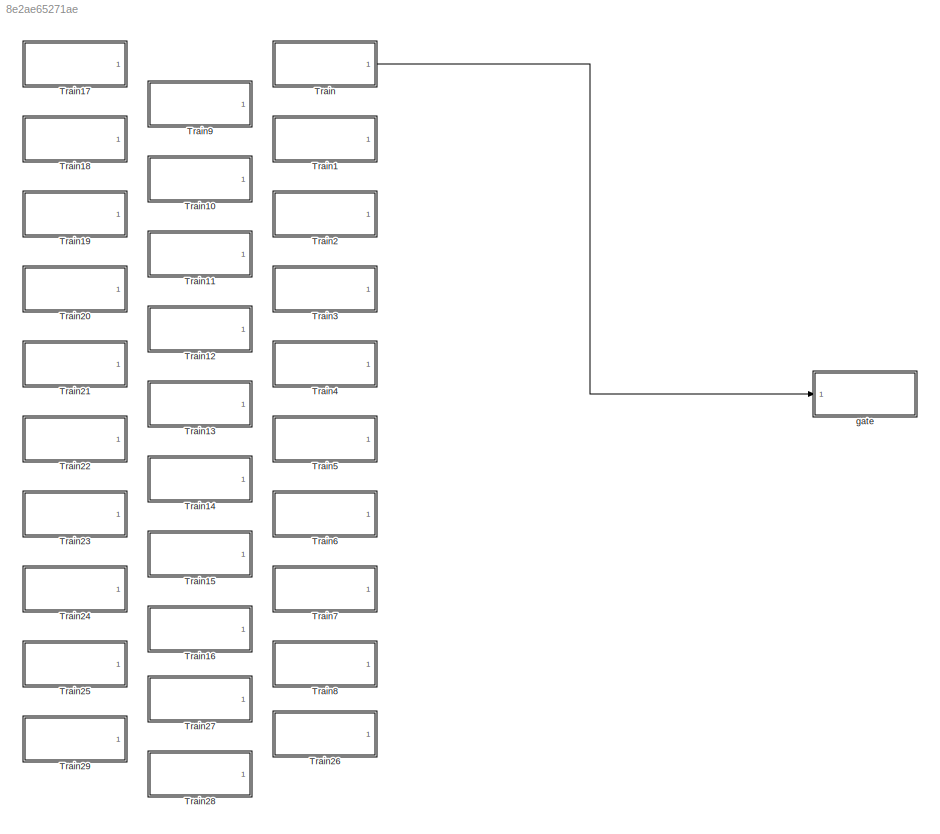
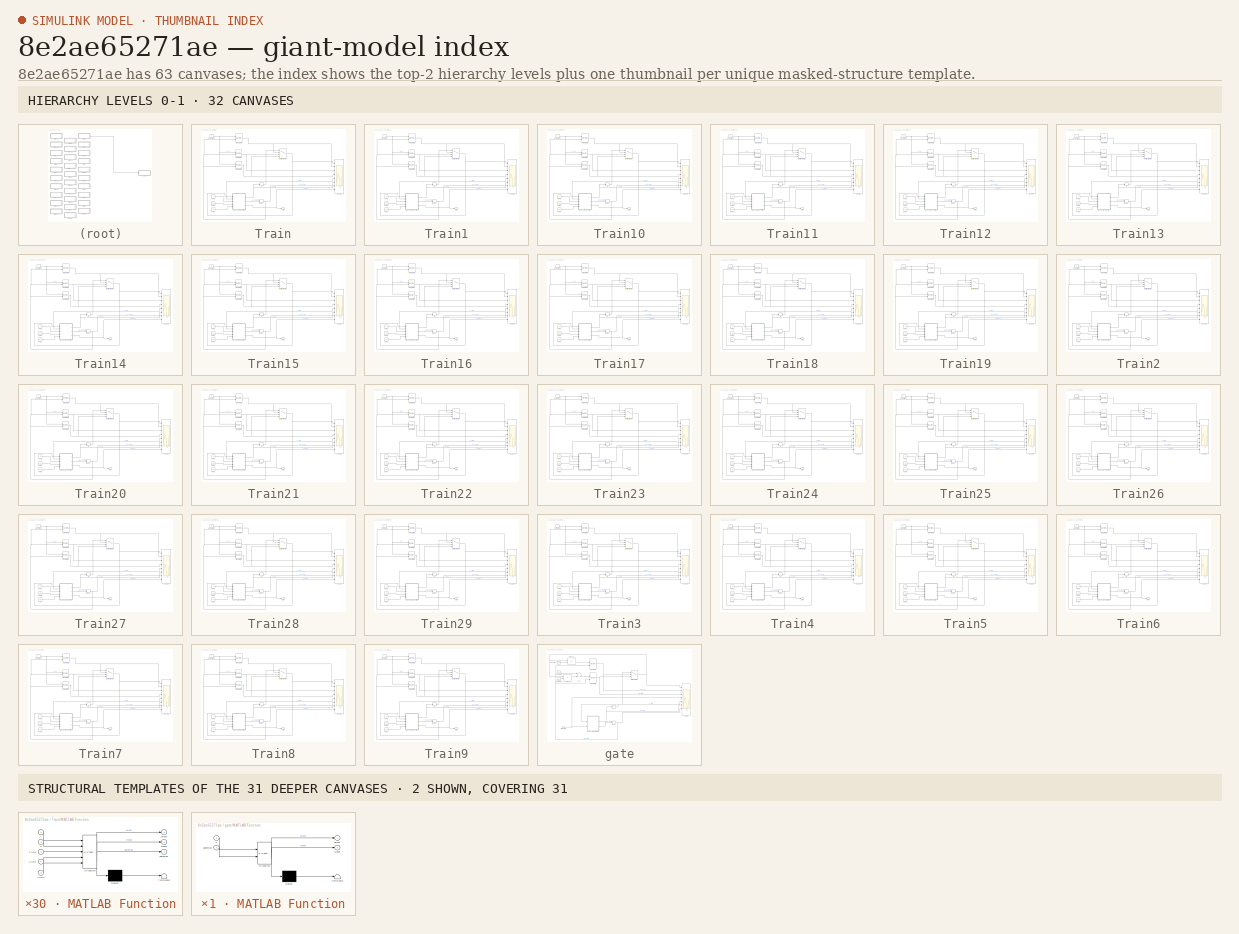
[diagram: thumbnail index - top-2 hierarchy levels (32 canvases) + 2 structural-template representatives of the remaining 31 canvases]
MODEL slx_8e2ae65271ae
KIND model
BLOCK [SubSystem] Train
  Ports = [0, 1]
  RequestExecContextInheritance = off
BLOCK [Constant] Train/Constant
BLOCK [DiscreteIntegrator] Train/Integrator t1
  ExternalReset = either
  InitialConditionSetting = State (most efficient)
  Ports = [2, 1]
  SampleTime = -1
BLOCK [DiscreteIntegrator] Train/Integrator t2
  ExternalReset = either
  InitialCondition = 5
  InitialConditionSetting = State (most efficient)
  Ports = [2, 1]
  SampleTime = -1
BLOCK [DiscreteIntegrator] Train/Integrator t3
  ExternalReset = either
  InitialCondition = 15
  InitialConditionSetting = State (most efficient)
  Ports = [2, 1]
  SampleTime = -1
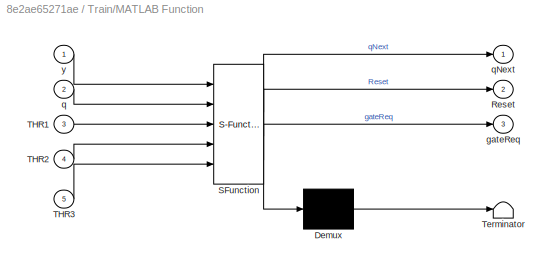
BLOCK [SubSystem] Train/MATLAB Function
  ErrorFcn = Stateflow.Translate.translate
  PermitHierarchicalResolution = ExplicitOnly
  Ports = [5, 3]
  Priority = 1
  RequestExecContextInheritance = off
  SFBlockType = MATLAB Function
  TreatAsAtomicUnit = on
BLOCK [Demux] Train/MATLAB Function/ Demux 
  Outputs = 1
  Ports = [1, 1]
BLOCK [S-Function] Train/MATLAB Function/ SFunction 
  EnableBusSupport = on
  FunctionName = sf_sfun
  PortCounts = [5 4]
  Ports = [5, 4]
  Tag = Stateflow S-Function trainGate 2
BLOCK [Terminator] Train/MATLAB Function/ Terminator 
BLOCK [Outport] Train/MATLAB Function/Reset
  IconDisplay = Port number
  Port = 2
BLOCK [Inport] Train/MATLAB Function/THR1
  IconDisplay = Port number
  Port = 3
BLOCK [Inport] Train/MATLAB Function/THR2
  IconDisplay = Port number
  Port = 4
BLOCK [Inport] Train/MATLAB Function/THR3
  IconDisplay = Port number
  Port = 5
BLOCK [Outport] Train/MATLAB Function/gateReq
  IconDisplay = Port number
  Port = 3
BLOCK [Inport] Train/MATLAB Function/q
  IconDisplay = Port number
  Port = 2
BLOCK [Outport] Train/MATLAB Function/qNext
  IconDisplay = Port number
BLOCK [Inport] Train/MATLAB Function/y
  IconDisplay = Port number
BLOCK [MultiPortSwitch] Train/Multiport Switch
  InputSameDT = off
  Ports = [4, 1]
  SaturateOnIntegerOverflow = off
BLOCK [Scope] Train/Scope
  Floating = off
  LimitDataPoints = off
  NumInputPorts = 8
  Ports = [8]
  ShowLegends = on
  TickLabels = on
  YMax = 40~20~20~30~3~3~1~1
  YMin = 0~0~0~10~1~1~0~-1
  ZoomMode = xonly
BLOCK [Constant] Train/THR1
  Value = 5
BLOCK [Constant] Train/THR2
  Value = 15
BLOCK [Constant] Train/THR3
  Value = 25
BLOCK [Memory] Train/q
  LinearizeMemory = on
  X0 = 1
BLOCK [Memory] Train/reset
  LinearizeMemory = on
  X0 = 1
BLOCK [Outport] Train/state
  IconDisplay = Port number
BLOCK [SubSystem] Train1
  Ports = [0, 1]
  RequestExecContextInheritance = off
BLOCK [Constant] Train1/Constant
BLOCK [DiscreteIntegrator] Train1/Integrator t1
  ExternalReset = either
  InitialConditionSetting = State (most efficient)
  Ports = [2, 1]
  SampleTime = -1
BLOCK [DiscreteIntegrator] Train1/Integrator t2
  ExternalReset = either
  InitialCondition = 5
  InitialConditionSetting = State (most efficient)
  Ports = [2, 1]
  SampleTime = -1
BLOCK [DiscreteIntegrator] Train1/Integrator t3
  ExternalReset = either
  InitialCondition = 15
  InitialConditionSetting = State (most efficient)
  Ports = [2, 1]
  SampleTime = -1
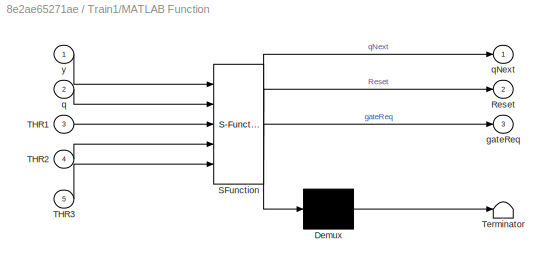
BLOCK [SubSystem] Train1/MATLAB Function
  ErrorFcn = Stateflow.Translate.translate
  PermitHierarchicalResolution = ExplicitOnly
  Ports = [5, 3]
  Priority = 1
  RequestExecContextInheritance = off
  SFBlockType = MATLAB Function
  TreatAsAtomicUnit = on
BLOCK [Demux] Train1/MATLAB Function/ Demux 
  Outputs = 1
  Ports = [1, 1]
BLOCK [S-Function] Train1/MATLAB Function/ SFunction 
  EnableBusSupport = on
  FunctionName = sf_sfun
  PortCounts = [5 4]
  Ports = [5, 4]
  Tag = Stateflow S-Function trainGate 3
BLOCK [Terminator] Train1/MATLAB Function/ Terminator 
BLOCK [Outport] Train1/MATLAB Function/Reset
  IconDisplay = Port number
  Port = 2
BLOCK [Inport] Train1/MATLAB Function/THR1
  IconDisplay = Port number
  Port = 3
BLOCK [Inport] Train1/MATLAB Function/THR2
  IconDisplay = Port number
  Port = 4
BLOCK [Inport] Train1/MATLAB Function/THR3
  IconDisplay = Port number
  Port = 5
BLOCK [Outport] Train1/MATLAB Function/gateReq
  IconDisplay = Port number
  Port = 3
BLOCK [Inport] Train1/MATLAB Function/q
  IconDisplay = Port number
  Port = 2
BLOCK [Outport] Train1/MATLAB Function/qNext
  IconDisplay = Port number
BLOCK [Inport] Train1/MATLAB Function/y
  IconDisplay = Port number
BLOCK [MultiPortSwitch] Train1/Multiport Switch
  InputSameDT = off
  Ports = [4, 1]
  SaturateOnIntegerOverflow = off
BLOCK [Scope] Train1/Scope
  Floating = off
  LimitDataPoints = off
  NumInputPorts = 8
  Ports = [8]
  ShowLegends = on
  TickLabels = on
  YMax = 40~20~20~30~3~3~1~1
  YMin = 0~0~0~10~1~1~0~-1
  ZoomMode = xonly
BLOCK [Constant] Train1/THR1
  Value = 5
BLOCK [Constant] Train1/THR2
  Value = 15
BLOCK [Constant] Train1/THR3
  Value = 25
BLOCK [Memory] Train1/q
  LinearizeMemory = on
  X0 = 1
BLOCK [Memory] Train1/reset
  LinearizeMemory = on
  X0 = 1
BLOCK [Outport] Train1/state
  IconDisplay = Port number
BLOCK [SubSystem] Train10
  Ports = [0, 1]
  RequestExecContextInheritance = off
BLOCK [Constant] Train10/Constant
BLOCK [DiscreteIntegrator] Train10/Integrator t1
  ExternalReset = either
  InitialConditionSetting = State (most efficient)
  Ports = [2, 1]
  SampleTime = -1
BLOCK [DiscreteIntegrator] Train10/Integrator t2
  ExternalReset = either
  InitialCondition = 5
  InitialConditionSetting = State (most efficient)
  Ports = [2, 1]
  SampleTime = -1
BLOCK [DiscreteIntegrator] Train10/Integrator t3
  ExternalReset = either
  InitialCondition = 15
  InitialConditionSetting = State (most efficient)
  Ports = [2, 1]
  SampleTime = -1
BLOCK [SubSystem] Train10/MATLAB Function
  ErrorFcn = Stateflow.Translate.translate
  PermitHierarchicalResolution = ExplicitOnly
  Ports = [5, 3]
  Priority = 1
  RequestExecContextInheritance = off
  SFBlockType = MATLAB Function
  TreatAsAtomicUnit = on
BLOCK [Demux] Train10/MATLAB Function/ Demux 
  Outputs = 1
  Ports = [1, 1]
BLOCK [S-Function] Train10/MATLAB Function/ SFunction 
  EnableBusSupport = on
  FunctionName = sf_sfun
  PortCounts = [5 4]
  Ports = [5, 4]
  Tag = Stateflow S-Function trainGate 12
BLOCK [Terminator] Train10/MATLAB Function/ Terminator 
BLOCK [Outport] Train10/MATLAB Function/Reset
  IconDisplay = Port number
  Port = 2
BLOCK [Inport] Train10/MATLAB Function/THR1
  IconDisplay = Port number
  Port = 3
BLOCK [Inport] Train10/MATLAB Function/THR2
  IconDisplay = Port number
  Port = 4
BLOCK [Inport] Train10/MATLAB Function/THR3
  IconDisplay = Port number
  Port = 5
BLOCK [Outport] Train10/MATLAB Function/gateReq
  IconDisplay = Port number
  Port = 3
BLOCK [Inport] Train10/MATLAB Function/q
  IconDisplay = Port number
  Port = 2
BLOCK [Outport] Train10/MATLAB Function/qNext
  IconDisplay = Port number
BLOCK [Inport] Train10/MATLAB Function/y
  IconDisplay = Port number
BLOCK [MultiPortSwitch] Train10/Multiport Switch
  InputSameDT = off
  Ports = [4, 1]
  SaturateOnIntegerOverflow = off
BLOCK [Scope] Train10/Scope
  Floating = off
  LimitDataPoints = off
  NumInputPorts = 8
  Ports = [8]
  ShowLegends = on
  TickLabels = on
  YMax = 40~20~20~30~3~3~1~1
  YMin = 0~0~0~10~1~1~0~-1
  ZoomMode = xonly
BLOCK [Constant] Train10/THR1
  Value = 5
BLOCK [Constant] Train10/THR2
  Value = 15
BLOCK [Constant] Train10/THR3
  Value = 25
BLOCK [Memory] Train10/q
  LinearizeMemory = on
  X0 = 1
BLOCK [Memory] Train10/reset
  LinearizeMemory = on
  X0 = 1
BLOCK [Outport] Train10/state
  IconDisplay = Port number
BLOCK [SubSystem] Train11
  Ports = [0, 1]
  RequestExecContextInheritance = off
BLOCK [Constant] Train11/Constant
BLOCK [DiscreteIntegrator] Train11/Integrator t1
  ExternalReset = either
  InitialConditionSetting = State (most efficient)
  Ports = [2, 1]
  SampleTime = -1
BLOCK [DiscreteIntegrator] Train11/Integrator t2
  ExternalReset = either
  InitialCondition = 5
  InitialConditionSetting = State (most efficient)
  Ports = [2, 1]
  SampleTime = -1
BLOCK [DiscreteIntegrator] Train11/Integrator t3
  ExternalReset = either
  InitialCondition = 15
  InitialConditionSetting = State (most efficient)
  Ports = [2, 1]
  SampleTime = -1
BLOCK [SubSystem] Train11/MATLAB Function
  ErrorFcn = Stateflow.Translate.translate
  PermitHierarchicalResolution = ExplicitOnly
  Ports = [5, 3]
  Priority = 1
  RequestExecContextInheritance = off
  SFBlockType = MATLAB Function
  TreatAsAtomicUnit = on
BLOCK [Demux] Train11/MATLAB Function/ Demux 
  Outputs = 1
  Ports = [1, 1]
BLOCK [S-Function] Train11/MATLAB Function/ SFunction 
  EnableBusSupport = on
  FunctionName = sf_sfun
  PortCounts = [5 4]
  Ports = [5, 4]
  Tag = Stateflow S-Function trainGate 13
BLOCK [Terminator] Train11/MATLAB Function/ Terminator 
BLOCK [Outport] Train11/MATLAB Function/Reset
  IconDisplay = Port number
  Port = 2
BLOCK [Inport] Train11/MATLAB Function/THR1
  IconDisplay = Port number
  Port = 3
BLOCK [Inport] Train11/MATLAB Function/THR2
  IconDisplay = Port number
  Port = 4
BLOCK [Inport] Train11/MATLAB Function/THR3
  IconDisplay = Port number
  Port = 5
BLOCK [Outport] Train11/MATLAB Function/gateReq
  IconDisplay = Port number
  Port = 3
BLOCK [Inport] Train11/MATLAB Function/q
  IconDisplay = Port number
  Port = 2
BLOCK [Outport] Train11/MATLAB Function/qNext
  IconDisplay = Port number
BLOCK [Inport] Train11/MATLAB Function/y
  IconDisplay = Port number
BLOCK [MultiPortSwitch] Train11/Multiport Switch
  InputSameDT = off
  Ports = [4, 1]
  SaturateOnIntegerOverflow = off
BLOCK [Scope] Train11/Scope
  Floating = off
  LimitDataPoints = off
  NumInputPorts = 8
  Ports = [8]
  ShowLegends = on
  TickLabels = on
  YMax = 40~20~20~30~3~3~1~1
  YMin = 0~0~0~10~1~1~0~-1
  ZoomMode = xonly
BLOCK [Constant] Train11/THR1
  Value = 5
BLOCK [Constant] Train11/THR2
  Value = 15
BLOCK [Constant] Train11/THR3
  Value = 25
BLOCK [Memory] Train11/q
  LinearizeMemory = on
  X0 = 1
BLOCK [Memory] Train11/reset
  LinearizeMemory = on
  X0 = 1
BLOCK [Outport] Train11/state
  IconDisplay = Port number
BLOCK [SubSystem] Train12
  Ports = [0, 1]
  RequestExecContextInheritance = off
BLOCK [Constant] Train12/Constant
BLOCK [DiscreteIntegrator] Train12/Integrator t1
  ExternalReset = either
  InitialConditionSetting = State (most efficient)
  Ports = [2, 1]
  SampleTime = -1
BLOCK [DiscreteIntegrator] Train12/Integrator t2
  ExternalReset = either
  InitialCondition = 5
  InitialConditionSetting = State (most efficient)
  Ports = [2, 1]
  SampleTime = -1
BLOCK [DiscreteIntegrator] Train12/Integrator t3
  ExternalReset = either
  InitialCondition = 15
  InitialConditionSetting = State (most efficient)
  Ports = [2, 1]
  SampleTime = -1
BLOCK [SubSystem] Train12/MATLAB Function
  ErrorFcn = Stateflow.Translate.translate
  PermitHierarchicalResolution = ExplicitOnly
  Ports = [5, 3]
  Priority = 1
  RequestExecContextInheritance = off
  SFBlockType = MATLAB Function
  TreatAsAtomicUnit = on
BLOCK [Demux] Train12/MATLAB Function/ Demux 
  Outputs = 1
  Ports = [1, 1]
BLOCK [S-Function] Train12/MATLAB Function/ SFunction 
  EnableBusSupport = on
  FunctionName = sf_sfun
  PortCounts = [5 4]
  Ports = [5, 4]
  Tag = Stateflow S-Function trainGate 14
BLOCK [Terminator] Train12/MATLAB Function/ Terminator 
BLOCK [Outport] Train12/MATLAB Function/Reset
  IconDisplay = Port number
  Port = 2
BLOCK [Inport] Train12/MATLAB Function/THR1
  IconDisplay = Port number
  Port = 3
BLOCK [Inport] Train12/MATLAB Function/THR2
  IconDisplay = Port number
  Port = 4
BLOCK [Inport] Train12/MATLAB Function/THR3
  IconDisplay = Port number
  Port = 5
BLOCK [Outport] Train12/MATLAB Function/gateReq
  IconDisplay = Port number
  Port = 3
BLOCK [Inport] Train12/MATLAB Function/q
  IconDisplay = Port number
  Port = 2
BLOCK [Outport] Train12/MATLAB Function/qNext
  IconDisplay = Port number
BLOCK [Inport] Train12/MATLAB Function/y
  IconDisplay = Port number
BLOCK [MultiPortSwitch] Train12/Multiport Switch
  InputSameDT = off
  Ports = [4, 1]
  SaturateOnIntegerOverflow = off
BLOCK [Scope] Train12/Scope
  Floating = off
  LimitDataPoints = off
  NumInputPorts = 8
  Ports = [8]
  ShowLegends = on
  TickLabels = on
  YMax = 40~20~20~30~3~3~1~1
  YMin = 0~0~0~10~1~1~0~-1
  ZoomMode = xonly
BLOCK [Constant] Train12/THR1
  Value = 5
BLOCK [Constant] Train12/THR2
  Value = 15
BLOCK [Constant] Train12/THR3
  Value = 25
BLOCK [Memory] Train12/q
  LinearizeMemory = on
  X0 = 1
BLOCK [Memory] Train12/reset
  LinearizeMemory = on
  X0 = 1
BLOCK [Outport] Train12/state
  IconDisplay = Port number
BLOCK [SubSystem] Train13
  Ports = [0, 1]
  RequestExecContextInheritance = off
BLOCK [Constant] Train13/Constant
BLOCK [DiscreteIntegrator] Train13/Integrator t1
  ExternalReset = either
  InitialConditionSetting = State (most efficient)
  Ports = [2, 1]
  SampleTime = -1
BLOCK [DiscreteIntegrator] Train13/Integrator t2
  ExternalReset = either
  InitialCondition = 5
  InitialConditionSetting = State (most efficient)
  Ports = [2, 1]
  SampleTime = -1
BLOCK [DiscreteIntegrator] Train13/Integrator t3
  ExternalReset = either
  InitialCondition = 15
  InitialConditionSetting = State (most efficient)
  Ports = [2, 1]
  SampleTime = -1
BLOCK [SubSystem] Train13/MATLAB Function
  ErrorFcn = Stateflow.Translate.translate
  PermitHierarchicalResolution = ExplicitOnly
  Ports = [5, 3]
  Priority = 1
  RequestExecContextInheritance = off
  SFBlockType = MATLAB Function
  TreatAsAtomicUnit = on
BLOCK [Demux] Train13/MATLAB Function/ Demux 
  Outputs = 1
  Ports = [1, 1]
BLOCK [S-Function] Train13/MATLAB Function/ SFunction 
  EnableBusSupport = on
  FunctionName = sf_sfun
  PortCounts = [5 4]
  Ports = [5, 4]
  Tag = Stateflow S-Function trainGate 15
BLOCK [Terminator] Train13/MATLAB Function/ Terminator 
BLOCK [Outport] Train13/MATLAB Function/Reset
  IconDisplay = Port number
  Port = 2
BLOCK [Inport] Train13/MATLAB Function/THR1
  IconDisplay = Port number
  Port = 3
BLOCK [Inport] Train13/MATLAB Function/THR2
  IconDisplay = Port number
  Port = 4
BLOCK [Inport] Train13/MATLAB Function/THR3
  IconDisplay = Port number
  Port = 5
BLOCK [Outport] Train13/MATLAB Function/gateReq
  IconDisplay = Port number
  Port = 3
BLOCK [Inport] Train13/MATLAB Function/q
  IconDisplay = Port number
  Port = 2
BLOCK [Outport] Train13/MATLAB Function/qNext
  IconDisplay = Port number
BLOCK [Inport] Train13/MATLAB Function/y
  IconDisplay = Port number
BLOCK [MultiPortSwitch] Train13/Multiport Switch
  InputSameDT = off
  Ports = [4, 1]
  SaturateOnIntegerOverflow = off
BLOCK [Scope] Train13/Scope
  Floating = off
  LimitDataPoints = off
  NumInputPorts = 8
  Ports = [8]
  ShowLegends = on
  TickLabels = on
  YMax = 40~20~20~30~3~3~1~1
  YMin = 0~0~0~10~1~1~0~-1
  ZoomMode = xonly
BLOCK [Constant] Train13/THR1
  Value = 5
BLOCK [Constant] Train13/THR2
  Value = 15
BLOCK [Constant] Train13/THR3
  Value = 25
BLOCK [Memory] Train13/q
  LinearizeMemory = on
  X0 = 1
BLOCK [Memory] Train13/reset
  LinearizeMemory = on
  X0 = 1
BLOCK [Outport] Train13/state
  IconDisplay = Port number
BLOCK [SubSystem] Train14
  Ports = [0, 1]
  RequestExecContextInheritance = off
BLOCK [Constant] Train14/Constant
BLOCK [DiscreteIntegrator] Train14/Integrator t1
  ExternalReset = either
  InitialConditionSetting = State (most efficient)
  Ports = [2, 1]
  SampleTime = -1
BLOCK [DiscreteIntegrator] Train14/Integrator t2
  ExternalReset = either
  InitialCondition = 5
  InitialConditionSetting = State (most efficient)
  Ports = [2, 1]
  SampleTime = -1
BLOCK [DiscreteIntegrator] Train14/Integrator t3
  ExternalReset = either
  InitialCondition = 15
  InitialConditionSetting = State (most efficient)
  Ports = [2, 1]
  SampleTime = -1
BLOCK [SubSystem] Train14/MATLAB Function
  ErrorFcn = Stateflow.Translate.translate
  PermitHierarchicalResolution = ExplicitOnly
  Ports = [5, 3]
  Priority = 1
  RequestExecContextInheritance = off
  SFBlockType = MATLAB Function
  TreatAsAtomicUnit = on
BLOCK [Demux] Train14/MATLAB Function/ Demux 
  Outputs = 1
  Ports = [1, 1]
BLOCK [S-Function] Train14/MATLAB Function/ SFunction 
  EnableBusSupport = on
  FunctionName = sf_sfun
  PortCounts = [5 4]
  Ports = [5, 4]
  Tag = Stateflow S-Function trainGate 16
BLOCK [Terminator] Train14/MATLAB Function/ Terminator 
BLOCK [Outport] Train14/MATLAB Function/Reset
  IconDisplay = Port number
  Port = 2
BLOCK [Inport] Train14/MATLAB Function/THR1
  IconDisplay = Port number
  Port = 3
BLOCK [Inport] Train14/MATLAB Function/THR2
  IconDisplay = Port number
  Port = 4
BLOCK [Inport] Train14/MATLAB Function/THR3
  IconDisplay = Port number
  Port = 5
BLOCK [Outport] Train14/MATLAB Function/gateReq
  IconDisplay = Port number
  Port = 3
BLOCK [Inport] Train14/MATLAB Function/q
  IconDisplay = Port number
  Port = 2
BLOCK [Outport] Train14/MATLAB Function/qNext
  IconDisplay = Port number
BLOCK [Inport] Train14/MATLAB Function/y
  IconDisplay = Port number
BLOCK [MultiPortSwitch] Train14/Multiport Switch
  InputSameDT = off
  Ports = [4, 1]
  SaturateOnIntegerOverflow = off
BLOCK [Scope] Train14/Scope
  Floating = off
  LimitDataPoints = off
  NumInputPorts = 8
  Ports = [8]
  ShowLegends = on
  TickLabels = on
  YMax = 40~20~20~30~3~3~1~1
  YMin = 0~0~0~10~1~1~0~-1
  ZoomMode = xonly
BLOCK [Constant] Train14/THR1
  Value = 5
BLOCK [Constant] Train14/THR2
  Value = 15
BLOCK [Constant] Train14/THR3
  Value = 25
BLOCK [Memory] Train14/q
  LinearizeMemory = on
  X0 = 1
BLOCK [Memory] Train14/reset
  LinearizeMemory = on
  X0 = 1
BLOCK [Outport] Train14/state
  IconDisplay = Port number
BLOCK [SubSystem] Train15
  Ports = [0, 1]
  RequestExecContextInheritance = off
BLOCK [Constant] Train15/Constant
BLOCK [DiscreteIntegrator] Train15/Integrator t1
  ExternalReset = either
  InitialConditionSetting = State (most efficient)
  Ports = [2, 1]
  SampleTime = -1
BLOCK [DiscreteIntegrator] Train15/Integrator t2
  ExternalReset = either
  InitialCondition = 5
  InitialConditionSetting = State (most efficient)
  Ports = [2, 1]
  SampleTime = -1
BLOCK [DiscreteIntegrator] Train15/Integrator t3
  ExternalReset = either
  InitialCondition = 15
  InitialConditionSetting = State (most efficient)
  Ports = [2, 1]
  SampleTime = -1
BLOCK [SubSystem] Train15/MATLAB Function
  ErrorFcn = Stateflow.Translate.translate
  PermitHierarchicalResolution = ExplicitOnly
  Ports = [5, 3]
  Priority = 1
  RequestExecContextInheritance = off
  SFBlockType = MATLAB Function
  TreatAsAtomicUnit = on
BLOCK [Demux] Train15/MATLAB Function/ Demux 
  Outputs = 1
  Ports = [1, 1]
BLOCK [S-Function] Train15/MATLAB Function/ SFunction 
  EnableBusSupport = on
  FunctionName = sf_sfun
  PortCounts = [5 4]
  Ports = [5, 4]
  Tag = Stateflow S-Function trainGate 17
BLOCK [Terminator] Train15/MATLAB Function/ Terminator 
BLOCK [Outport] Train15/MATLAB Function/Reset
  IconDisplay = Port number
  Port = 2
BLOCK [Inport] Train15/MATLAB Function/THR1
  IconDisplay = Port number
  Port = 3
BLOCK [Inport] Train15/MATLAB Function/THR2
  IconDisplay = Port number
  Port = 4
BLOCK [Inport] Train15/MATLAB Function/THR3
  IconDisplay = Port number
  Port = 5
BLOCK [Outport] Train15/MATLAB Function/gateReq
  IconDisplay = Port number
  Port = 3
BLOCK [Inport] Train15/MATLAB Function/q
  IconDisplay = Port number
  Port = 2
BLOCK [Outport] Train15/MATLAB Function/qNext
  IconDisplay = Port number
BLOCK [Inport] Train15/MATLAB Function/y
  IconDisplay = Port number
BLOCK [MultiPortSwitch] Train15/Multiport Switch
  InputSameDT = off
  Ports = [4, 1]
  SaturateOnIntegerOverflow = off
BLOCK [Scope] Train15/Scope
  Floating = off
  LimitDataPoints = off
  NumInputPorts = 8
  Ports = [8]
  ShowLegends = on
  TickLabels = on
  YMax = 40~20~20~30~3~3~1~1
  YMin = 0~0~0~10~1~1~0~-1
  ZoomMode = xonly
BLOCK [Constant] Train15/THR1
  Value = 5
BLOCK [Constant] Train15/THR2
  Value = 15
BLOCK [Constant] Train15/THR3
  Value = 25
BLOCK [Memory] Train15/q
  LinearizeMemory = on
  X0 = 1
BLOCK [Memory] Train15/reset
  LinearizeMemory = on
  X0 = 1
BLOCK [Outport] Train15/state
  IconDisplay = Port number
BLOCK [SubSystem] Train16
  Ports = [0, 1]
  RequestExecContextInheritance = off
BLOCK [Constant] Train16/Constant
BLOCK [DiscreteIntegrator] Train16/Integrator t1
  ExternalReset = either
  InitialConditionSetting = State (most efficient)
  Ports = [2, 1]
  SampleTime = -1
BLOCK [DiscreteIntegrator] Train16/Integrator t2
  ExternalReset = either
  InitialCondition = 5
  InitialConditionSetting = State (most efficient)
  Ports = [2, 1]
  SampleTime = -1
BLOCK [DiscreteIntegrator] Train16/Integrator t3
  ExternalReset = either
  InitialCondition = 15
  InitialConditionSetting = State (most efficient)
  Ports = [2, 1]
  SampleTime = -1
BLOCK [SubSystem] Train16/MATLAB Function
  ErrorFcn = Stateflow.Translate.translate
  PermitHierarchicalResolution = ExplicitOnly
  Ports = [5, 3]
  Priority = 1
  RequestExecContextInheritance = off
  SFBlockType = MATLAB Function
  TreatAsAtomicUnit = on
BLOCK [Demux] Train16/MATLAB Function/ Demux 
  Outputs = 1
  Ports = [1, 1]
BLOCK [S-Function] Train16/MATLAB Function/ SFunction 
  EnableBusSupport = on
  FunctionName = sf_sfun
  PortCounts = [5 4]
  Ports = [5, 4]
  Tag = Stateflow S-Function trainGate 18
BLOCK [Terminator] Train16/MATLAB Function/ Terminator 
BLOCK [Outport] Train16/MATLAB Function/Reset
  IconDisplay = Port number
  Port = 2
BLOCK [Inport] Train16/MATLAB Function/THR1
  IconDisplay = Port number
  Port = 3
BLOCK [Inport] Train16/MATLAB Function/THR2
  IconDisplay = Port number
  Port = 4
BLOCK [Inport] Train16/MATLAB Function/THR3
  IconDisplay = Port number
  Port = 5
BLOCK [Outport] Train16/MATLAB Function/gateReq
  IconDisplay = Port number
  Port = 3
BLOCK [Inport] Train16/MATLAB Function/q
  IconDisplay = Port number
  Port = 2
BLOCK [Outport] Train16/MATLAB Function/qNext
  IconDisplay = Port number
BLOCK [Inport] Train16/MATLAB Function/y
  IconDisplay = Port number
BLOCK [MultiPortSwitch] Train16/Multiport Switch
  InputSameDT = off
  Ports = [4, 1]
  SaturateOnIntegerOverflow = off
BLOCK [Scope] Train16/Scope
  Floating = off
  LimitDataPoints = off
  NumInputPorts = 8
  Ports = [8]
  ShowLegends = on
  TickLabels = on
  YMax = 40~20~20~30~3~3~1~1
  YMin = 0~0~0~10~1~1~0~-1
  ZoomMode = xonly
BLOCK [Constant] Train16/THR1
  Value = 5
BLOCK [Constant] Train16/THR2
  Value = 15
BLOCK [Constant] Train16/THR3
  Value = 25
BLOCK [Memory] Train16/q
  LinearizeMemory = on
  X0 = 1
BLOCK [Memory] Train16/reset
  LinearizeMemory = on
  X0 = 1
BLOCK [Outport] Train16/state
  IconDisplay = Port number
BLOCK [SubSystem] Train17
  Ports = [0, 1]
  RequestExecContextInheritance = off
BLOCK [Constant] Train17/Constant
BLOCK [DiscreteIntegrator] Train17/Integrator t1
  ExternalReset = either
  InitialConditionSetting = State (most efficient)
  Ports = [2, 1]
  SampleTime = -1
BLOCK [DiscreteIntegrator] Train17/Integrator t2
  ExternalReset = either
  InitialCondition = 5
  InitialConditionSetting = State (most efficient)
  Ports = [2, 1]
  SampleTime = -1
BLOCK [DiscreteIntegrator] Train17/Integrator t3
  ExternalReset = either
  InitialCondition = 15
  InitialConditionSetting = State (most efficient)
  Ports = [2, 1]
  SampleTime = -1
BLOCK [SubSystem] Train17/MATLAB Function
  ErrorFcn = Stateflow.Translate.translate
  PermitHierarchicalResolution = ExplicitOnly
  Ports = [5, 3]
  Priority = 1
  RequestExecContextInheritance = off
  SFBlockType = MATLAB Function
  TreatAsAtomicUnit = on
BLOCK [Demux] Train17/MATLAB Function/ Demux 
  Outputs = 1
  Ports = [1, 1]
BLOCK [S-Function] Train17/MATLAB Function/ SFunction 
  EnableBusSupport = on
  FunctionName = sf_sfun
  PortCounts = [5 4]
  Ports = [5, 4]
  Tag = Stateflow S-Function trainGate 20
BLOCK [Terminator] Train17/MATLAB Function/ Terminator 
BLOCK [Outport] Train17/MATLAB Function/Reset
  IconDisplay = Port number
  Port = 2
BLOCK [Inport] Train17/MATLAB Function/THR1
  IconDisplay = Port number
  Port = 3
BLOCK [Inport] Train17/MATLAB Function/THR2
  IconDisplay = Port number
  Port = 4
BLOCK [Inport] Train17/MATLAB Function/THR3
  IconDisplay = Port number
  Port = 5
BLOCK [Outport] Train17/MATLAB Function/gateReq
  IconDisplay = Port number
  Port = 3
BLOCK [Inport] Train17/MATLAB Function/q
  IconDisplay = Port number
  Port = 2
BLOCK [Outport] Train17/MATLAB Function/qNext
  IconDisplay = Port number
BLOCK [Inport] Train17/MATLAB Function/y
  IconDisplay = Port number
BLOCK [MultiPortSwitch] Train17/Multiport Switch
  InputSameDT = off
  Ports = [4, 1]
  SaturateOnIntegerOverflow = off
BLOCK [Scope] Train17/Scope
  Floating = off
  LimitDataPoints = off
  NumInputPorts = 8
  Ports = [8]
  ShowLegends = on
  TickLabels = on
  YMax = 40~20~20~30~3~3~1~1
  YMin = 0~0~0~10~1~1~0~-1
  ZoomMode = xonly
BLOCK [Constant] Train17/THR1
  Value = 5
BLOCK [Constant] Train17/THR2
  Value = 15
BLOCK [Constant] Train17/THR3
  Value = 25
BLOCK [Memory] Train17/q
  LinearizeMemory = on
  X0 = 1
BLOCK [Memory] Train17/reset
  LinearizeMemory = on
  X0 = 1
BLOCK [Outport] Train17/state
  IconDisplay = Port number
BLOCK [SubSystem] Train18
  Ports = [0, 1]
  RequestExecContextInheritance = off
BLOCK [Constant] Train18/Constant
BLOCK [DiscreteIntegrator] Train18/Integrator t1
  ExternalReset = either
  InitialConditionSetting = State (most efficient)
  Ports = [2, 1]
  SampleTime = -1
BLOCK [DiscreteIntegrator] Train18/Integrator t2
  ExternalReset = either
  InitialCondition = 5
  InitialConditionSetting = State (most efficient)
  Ports = [2, 1]
  SampleTime = -1
BLOCK [DiscreteIntegrator] Train18/Integrator t3
  ExternalReset = either
  InitialCondition = 15
  InitialConditionSetting = State (most efficient)
  Ports = [2, 1]
  SampleTime = -1
BLOCK [SubSystem] Train18/MATLAB Function
  ErrorFcn = Stateflow.Translate.translate
  PermitHierarchicalResolution = ExplicitOnly
  Ports = [5, 3]
  Priority = 1
  RequestExecContextInheritance = off
  SFBlockType = MATLAB Function
  TreatAsAtomicUnit = on
BLOCK [Demux] Train18/MATLAB Function/ Demux 
  Outputs = 1
  Ports = [1, 1]
BLOCK [S-Function] Train18/MATLAB Function/ SFunction 
  EnableBusSupport = on
  FunctionName = sf_sfun
  PortCounts = [5 4]
  Ports = [5, 4]
  Tag = Stateflow S-Function trainGate 21
BLOCK [Terminator] Train18/MATLAB Function/ Terminator 
BLOCK [Outport] Train18/MATLAB Function/Reset
  IconDisplay = Port number
  Port = 2
BLOCK [Inport] Train18/MATLAB Function/THR1
  IconDisplay = Port number
  Port = 3
BLOCK [Inport] Train18/MATLAB Function/THR2
  IconDisplay = Port number
  Port = 4
BLOCK [Inport] Train18/MATLAB Function/THR3
  IconDisplay = Port number
  Port = 5
BLOCK [Outport] Train18/MATLAB Function/gateReq
  IconDisplay = Port number
  Port = 3
BLOCK [Inport] Train18/MATLAB Function/q
  IconDisplay = Port number
  Port = 2
BLOCK [Outport] Train18/MATLAB Function/qNext
  IconDisplay = Port number
BLOCK [Inport] Train18/MATLAB Function/y
  IconDisplay = Port number
BLOCK [MultiPortSwitch] Train18/Multiport Switch
  InputSameDT = off
  Ports = [4, 1]
  SaturateOnIntegerOverflow = off
BLOCK [Scope] Train18/Scope
  Floating = off
  LimitDataPoints = off
  NumInputPorts = 8
  Ports = [8]
  ShowLegends = on
  TickLabels = on
  YMax = 40~20~20~30~3~3~1~1
  YMin = 0~0~0~10~1~1~0~-1
  ZoomMode = xonly
BLOCK [Constant] Train18/THR1
  Value = 5
BLOCK [Constant] Train18/THR2
  Value = 15
BLOCK [Constant] Train18/THR3
  Value = 25
BLOCK [Memory] Train18/q
  LinearizeMemory = on
  X0 = 1
BLOCK [Memory] Train18/reset
  LinearizeMemory = on
  X0 = 1
BLOCK [Outport] Train18/state
  IconDisplay = Port number
BLOCK [SubSystem] Train19
  Ports = [0, 1]
  RequestExecContextInheritance = off
BLOCK [Constant] Train19/Constant
BLOCK [DiscreteIntegrator] Train19/Integrator t1
  ExternalReset = either
  InitialConditionSetting = State (most efficient)
  Ports = [2, 1]
  SampleTime = -1
BLOCK [DiscreteIntegrator] Train19/Integrator t2
  ExternalReset = either
  InitialCondition = 5
  InitialConditionSetting = State (most efficient)
  Ports = [2, 1]
  SampleTime = -1
BLOCK [DiscreteIntegrator] Train19/Integrator t3
  ExternalReset = either
  InitialCondition = 15
  InitialConditionSetting = State (most efficient)
  Ports = [2, 1]
  SampleTime = -1
BLOCK [SubSystem] Train19/MATLAB Function
  ErrorFcn = Stateflow.Translate.translate
  PermitHierarchicalResolution = ExplicitOnly
  Ports = [5, 3]
  Priority = 1
  RequestExecContextInheritance = off
  SFBlockType = MATLAB Function
  TreatAsAtomicUnit = on
BLOCK [Demux] Train19/MATLAB Function/ Demux 
  Outputs = 1
  Ports = [1, 1]
BLOCK [S-Function] Train19/MATLAB Function/ SFunction 
  EnableBusSupport = on
  FunctionName = sf_sfun
  PortCounts = [5 4]
  Ports = [5, 4]
  Tag = Stateflow S-Function trainGate 22
BLOCK [Terminator] Train19/MATLAB Function/ Terminator 
BLOCK [Outport] Train19/MATLAB Function/Reset
  IconDisplay = Port number
  Port = 2
BLOCK [Inport] Train19/MATLAB Function/THR1
  IconDisplay = Port number
  Port = 3
BLOCK [Inport] Train19/MATLAB Function/THR2
  IconDisplay = Port number
  Port = 4
BLOCK [Inport] Train19/MATLAB Function/THR3
  IconDisplay = Port number
  Port = 5
BLOCK [Outport] Train19/MATLAB Function/gateReq
  IconDisplay = Port number
  Port = 3
BLOCK [Inport] Train19/MATLAB Function/q
  IconDisplay = Port number
  Port = 2
BLOCK [Outport] Train19/MATLAB Function/qNext
  IconDisplay = Port number
BLOCK [Inport] Train19/MATLAB Function/y
  IconDisplay = Port number
BLOCK [MultiPortSwitch] Train19/Multiport Switch
  InputSameDT = off
  Ports = [4, 1]
  SaturateOnIntegerOverflow = off
BLOCK [Scope] Train19/Scope
  Floating = off
  LimitDataPoints = off
  NumInputPorts = 8
  Ports = [8]
  ShowLegends = on
  TickLabels = on
  YMax = 40~20~20~30~3~3~1~1
  YMin = 0~0~0~10~1~1~0~-1
  ZoomMode = xonly
BLOCK [Constant] Train19/THR1
  Value = 5
BLOCK [Constant] Train19/THR2
  Value = 15
BLOCK [Constant] Train19/THR3
  Value = 25
BLOCK [Memory] Train19/q
  LinearizeMemory = on
  X0 = 1
BLOCK [Memory] Train19/reset
  LinearizeMemory = on
  X0 = 1
BLOCK [Outport] Train19/state
  IconDisplay = Port number
BLOCK [SubSystem] Train2
  Ports = [0, 1]
  RequestExecContextInheritance = off
BLOCK [Constant] Train2/Constant
BLOCK [DiscreteIntegrator] Train2/Integrator t1
  ExternalReset = either
  InitialConditionSetting = State (most efficient)
  Ports = [2, 1]
  SampleTime = -1
BLOCK [DiscreteIntegrator] Train2/Integrator t2
  ExternalReset = either
  InitialCondition = 5
  InitialConditionSetting = State (most efficient)
  Ports = [2, 1]
  SampleTime = -1
BLOCK [DiscreteIntegrator] Train2/Integrator t3
  ExternalReset = either
  InitialCondition = 15
  InitialConditionSetting = State (most efficient)
  Ports = [2, 1]
  SampleTime = -1
BLOCK [SubSystem] Train2/MATLAB Function
  ErrorFcn = Stateflow.Translate.translate
  PermitHierarchicalResolution = ExplicitOnly
  Ports = [5, 3]
  Priority = 1
  RequestExecContextInheritance = off
  SFBlockType = MATLAB Function
  TreatAsAtomicUnit = on
BLOCK [Demux] Train2/MATLAB Function/ Demux 
  Outputs = 1
  Ports = [1, 1]
BLOCK [S-Function] Train2/MATLAB Function/ SFunction 
  EnableBusSupport = on
  FunctionName = sf_sfun
  PortCounts = [5 4]
  Ports = [5, 4]
  Tag = Stateflow S-Function trainGate 5
BLOCK [Terminator] Train2/MATLAB Function/ Terminator 
BLOCK [Outport] Train2/MATLAB Function/Reset
  IconDisplay = Port number
  Port = 2
BLOCK [Inport] Train2/MATLAB Function/THR1
  IconDisplay = Port number
  Port = 3
BLOCK [Inport] Train2/MATLAB Function/THR2
  IconDisplay = Port number
  Port = 4
BLOCK [Inport] Train2/MATLAB Function/THR3
  IconDisplay = Port number
  Port = 5
BLOCK [Outport] Train2/MATLAB Function/gateReq
  IconDisplay = Port number
  Port = 3
BLOCK [Inport] Train2/MATLAB Function/q
  IconDisplay = Port number
  Port = 2
BLOCK [Outport] Train2/MATLAB Function/qNext
  IconDisplay = Port number
BLOCK [Inport] Train2/MATLAB Function/y
  IconDisplay = Port number
BLOCK [MultiPortSwitch] Train2/Multiport Switch
  InputSameDT = off
  Ports = [4, 1]
  SaturateOnIntegerOverflow = off
BLOCK [Scope] Train2/Scope
  Floating = off
  LimitDataPoints = off
  NumInputPorts = 8
  Ports = [8]
  ShowLegends = on
  TickLabels = on
  YMax = 40~20~20~30~3~3~1~1
  YMin = 0~0~0~10~1~1~0~-1
  ZoomMode = xonly
BLOCK [Constant] Train2/THR1
  Value = 5
BLOCK [Constant] Train2/THR2
  Value = 15
BLOCK [Constant] Train2/THR3
  Value = 25
BLOCK [Memory] Train2/q
  LinearizeMemory = on
  X0 = 1
BLOCK [Memory] Train2/reset
  LinearizeMemory = on
  X0 = 1
BLOCK [Outport] Train2/state
  IconDisplay = Port number
BLOCK [SubSystem] Train20
  Ports = [0, 1]
  RequestExecContextInheritance = off
BLOCK [Constant] Train20/Constant
BLOCK [DiscreteIntegrator] Train20/Integrator t1
  ExternalReset = either
  InitialConditionSetting = State (most efficient)
  Ports = [2, 1]
  SampleTime = -1
BLOCK [DiscreteIntegrator] Train20/Integrator t2
  ExternalReset = either
  InitialCondition = 5
  InitialConditionSetting = State (most efficient)
  Ports = [2, 1]
  SampleTime = -1
BLOCK [DiscreteIntegrator] Train20/Integrator t3
  ExternalReset = either
  InitialCondition = 15
  InitialConditionSetting = State (most efficient)
  Ports = [2, 1]
  SampleTime = -1
BLOCK [SubSystem] Train20/MATLAB Function
  ErrorFcn = Stateflow.Translate.translate
  PermitHierarchicalResolution = ExplicitOnly
  Ports = [5, 3]
  Priority = 1
  RequestExecContextInheritance = off
  SFBlockType = MATLAB Function
  TreatAsAtomicUnit = on
BLOCK [Demux] Train20/MATLAB Function/ Demux 
  Outputs = 1
  Ports = [1, 1]
BLOCK [S-Function] Train20/MATLAB Function/ SFunction 
  EnableBusSupport = on
  FunctionName = sf_sfun
  PortCounts = [5 4]
  Ports = [5, 4]
  Tag = Stateflow S-Function trainGate 23
BLOCK [Terminator] Train20/MATLAB Function/ Terminator 
BLOCK [Outport] Train20/MATLAB Function/Reset
  IconDisplay = Port number
  Port = 2
BLOCK [Inport] Train20/MATLAB Function/THR1
  IconDisplay = Port number
  Port = 3
BLOCK [Inport] Train20/MATLAB Function/THR2
  IconDisplay = Port number
  Port = 4
BLOCK [Inport] Train20/MATLAB Function/THR3
  IconDisplay = Port number
  Port = 5
BLOCK [Outport] Train20/MATLAB Function/gateReq
  IconDisplay = Port number
  Port = 3
BLOCK [Inport] Train20/MATLAB Function/q
  IconDisplay = Port number
  Port = 2
BLOCK [Outport] Train20/MATLAB Function/qNext
  IconDisplay = Port number
BLOCK [Inport] Train20/MATLAB Function/y
  IconDisplay = Port number
BLOCK [MultiPortSwitch] Train20/Multiport Switch
  InputSameDT = off
  Ports = [4, 1]
  SaturateOnIntegerOverflow = off
BLOCK [Scope] Train20/Scope
  Floating = off
  LimitDataPoints = off
  NumInputPorts = 8
  Ports = [8]
  ShowLegends = on
  TickLabels = on
  YMax = 40~20~20~30~3~3~1~1
  YMin = 0~0~0~10~1~1~0~-1
  ZoomMode = xonly
BLOCK [Constant] Train20/THR1
  Value = 5
BLOCK [Constant] Train20/THR2
  Value = 15
BLOCK [Constant] Train20/THR3
  Value = 25
BLOCK [Memory] Train20/q
  LinearizeMemory = on
  X0 = 1
BLOCK [Memory] Train20/reset
  LinearizeMemory = on
  X0 = 1
BLOCK [Outport] Train20/state
  IconDisplay = Port number
BLOCK [SubSystem] Train21
  Ports = [0, 1]
  RequestExecContextInheritance = off
BLOCK [Constant] Train21/Constant
BLOCK [DiscreteIntegrator] Train21/Integrator t1
  ExternalReset = either
  InitialConditionSetting = State (most efficient)
  Ports = [2, 1]
  SampleTime = -1
BLOCK [DiscreteIntegrator] Train21/Integrator t2
  ExternalReset = either
  InitialCondition = 5
  InitialConditionSetting = State (most efficient)
  Ports = [2, 1]
  SampleTime = -1
BLOCK [DiscreteIntegrator] Train21/Integrator t3
  ExternalReset = either
  InitialCondition = 15
  InitialConditionSetting = State (most efficient)
  Ports = [2, 1]
  SampleTime = -1
BLOCK [SubSystem] Train21/MATLAB Function
  ErrorFcn = Stateflow.Translate.translate
  PermitHierarchicalResolution = ExplicitOnly
  Ports = [5, 3]
  Priority = 1
  RequestExecContextInheritance = off
  SFBlockType = MATLAB Function
  TreatAsAtomicUnit = on
BLOCK [Demux] Train21/MATLAB Function/ Demux 
  Outputs = 1
  Ports = [1, 1]
BLOCK [S-Function] Train21/MATLAB Function/ SFunction 
  EnableBusSupport = on
  FunctionName = sf_sfun
  PortCounts = [5 4]
  Ports = [5, 4]
  Tag = Stateflow S-Function trainGate 24
BLOCK [Terminator] Train21/MATLAB Function/ Terminator 
BLOCK [Outport] Train21/MATLAB Function/Reset
  IconDisplay = Port number
  Port = 2
BLOCK [Inport] Train21/MATLAB Function/THR1
  IconDisplay = Port number
  Port = 3
BLOCK [Inport] Train21/MATLAB Function/THR2
  IconDisplay = Port number
  Port = 4
BLOCK [Inport] Train21/MATLAB Function/THR3
  IconDisplay = Port number
  Port = 5
BLOCK [Outport] Train21/MATLAB Function/gateReq
  IconDisplay = Port number
  Port = 3
BLOCK [Inport] Train21/MATLAB Function/q
  IconDisplay = Port number
  Port = 2
BLOCK [Outport] Train21/MATLAB Function/qNext
  IconDisplay = Port number
BLOCK [Inport] Train21/MATLAB Function/y
  IconDisplay = Port number
BLOCK [MultiPortSwitch] Train21/Multiport Switch
  InputSameDT = off
  Ports = [4, 1]
  SaturateOnIntegerOverflow = off
BLOCK [Scope] Train21/Scope
  Floating = off
  LimitDataPoints = off
  NumInputPorts = 8
  Ports = [8]
  ShowLegends = on
  TickLabels = on
  YMax = 40~20~20~30~3~3~1~1
  YMin = 0~0~0~10~1~1~0~-1
  ZoomMode = xonly
BLOCK [Constant] Train21/THR1
  Value = 5
BLOCK [Constant] Train21/THR2
  Value = 15
BLOCK [Constant] Train21/THR3
  Value = 25
BLOCK [Memory] Train21/q
  LinearizeMemory = on
  X0 = 1
BLOCK [Memory] Train21/reset
  LinearizeMemory = on
  X0 = 1
BLOCK [Outport] Train21/state
  IconDisplay = Port number
BLOCK [SubSystem] Train22
  Ports = [0, 1]
  RequestExecContextInheritance = off
BLOCK [Constant] Train22/Constant
BLOCK [DiscreteIntegrator] Train22/Integrator t1
  ExternalReset = either
  InitialConditionSetting = State (most efficient)
  Ports = [2, 1]
  SampleTime = -1
BLOCK [DiscreteIntegrator] Train22/Integrator t2
  ExternalReset = either
  InitialCondition = 5
  InitialConditionSetting = State (most efficient)
  Ports = [2, 1]
  SampleTime = -1
BLOCK [DiscreteIntegrator] Train22/Integrator t3
  ExternalReset = either
  InitialCondition = 15
  InitialConditionSetting = State (most efficient)
  Ports = [2, 1]
  SampleTime = -1
BLOCK [SubSystem] Train22/MATLAB Function
  ErrorFcn = Stateflow.Translate.translate
  PermitHierarchicalResolution = ExplicitOnly
  Ports = [5, 3]
  Priority = 1
  RequestExecContextInheritance = off
  SFBlockType = MATLAB Function
  TreatAsAtomicUnit = on
BLOCK [Demux] Train22/MATLAB Function/ Demux 
  Outputs = 1
  Ports = [1, 1]
BLOCK [S-Function] Train22/MATLAB Function/ SFunction 
  EnableBusSupport = on
  FunctionName = sf_sfun
  PortCounts = [5 4]
  Ports = [5, 4]
  Tag = Stateflow S-Function trainGate 25
BLOCK [Terminator] Train22/MATLAB Function/ Terminator 
BLOCK [Outport] Train22/MATLAB Function/Reset
  IconDisplay = Port number
  Port = 2
BLOCK [Inport] Train22/MATLAB Function/THR1
  IconDisplay = Port number
  Port = 3
BLOCK [Inport] Train22/MATLAB Function/THR2
  IconDisplay = Port number
  Port = 4
BLOCK [Inport] Train22/MATLAB Function/THR3
  IconDisplay = Port number
  Port = 5
BLOCK [Outport] Train22/MATLAB Function/gateReq
  IconDisplay = Port number
  Port = 3
BLOCK [Inport] Train22/MATLAB Function/q
  IconDisplay = Port number
  Port = 2
BLOCK [Outport] Train22/MATLAB Function/qNext
  IconDisplay = Port number
BLOCK [Inport] Train22/MATLAB Function/y
  IconDisplay = Port number
BLOCK [MultiPortSwitch] Train22/Multiport Switch
  InputSameDT = off
  Ports = [4, 1]
  SaturateOnIntegerOverflow = off
BLOCK [Scope] Train22/Scope
  Floating = off
  LimitDataPoints = off
  NumInputPorts = 8
  Ports = [8]
  ShowLegends = on
  TickLabels = on
  YMax = 40~20~20~30~3~3~1~1
  YMin = 0~0~0~10~1~1~0~-1
  ZoomMode = xonly
BLOCK [Constant] Train22/THR1
  Value = 5
BLOCK [Constant] Train22/THR2
  Value = 15
BLOCK [Constant] Train22/THR3
  Value = 25
BLOCK [Memory] Train22/q
  LinearizeMemory = on
  X0 = 1
BLOCK [Memory] Train22/reset
  LinearizeMemory = on
  X0 = 1
BLOCK [Outport] Train22/state
  IconDisplay = Port number
BLOCK [SubSystem] Train23
  Ports = [0, 1]
  RequestExecContextInheritance = off
BLOCK [Constant] Train23/Constant
BLOCK [DiscreteIntegrator] Train23/Integrator t1
  ExternalReset = either
  InitialConditionSetting = State (most efficient)
  Ports = [2, 1]
  SampleTime = -1
BLOCK [DiscreteIntegrator] Train23/Integrator t2
  ExternalReset = either
  InitialCondition = 5
  InitialConditionSetting = State (most efficient)
  Ports = [2, 1]
  SampleTime = -1
BLOCK [DiscreteIntegrator] Train23/Integrator t3
  ExternalReset = either
  InitialCondition = 15
  InitialConditionSetting = State (most efficient)
  Ports = [2, 1]
  SampleTime = -1
BLOCK [SubSystem] Train23/MATLAB Function
  ErrorFcn = Stateflow.Translate.translate
  PermitHierarchicalResolution = ExplicitOnly
  Ports = [5, 3]
  Priority = 1
  RequestExecContextInheritance = off
  SFBlockType = MATLAB Function
  TreatAsAtomicUnit = on
BLOCK [Demux] Train23/MATLAB Function/ Demux 
  Outputs = 1
  Ports = [1, 1]
BLOCK [S-Function] Train23/MATLAB Function/ SFunction 
  EnableBusSupport = on
  FunctionName = sf_sfun
  PortCounts = [5 4]
  Ports = [5, 4]
  Tag = Stateflow S-Function trainGate 26
BLOCK [Terminator] Train23/MATLAB Function/ Terminator 
BLOCK [Outport] Train23/MATLAB Function/Reset
  IconDisplay = Port number
  Port = 2
BLOCK [Inport] Train23/MATLAB Function/THR1
  IconDisplay = Port number
  Port = 3
BLOCK [Inport] Train23/MATLAB Function/THR2
  IconDisplay = Port number
  Port = 4
BLOCK [Inport] Train23/MATLAB Function/THR3
  IconDisplay = Port number
  Port = 5
BLOCK [Outport] Train23/MATLAB Function/gateReq
  IconDisplay = Port number
  Port = 3
BLOCK [Inport] Train23/MATLAB Function/q
  IconDisplay = Port number
  Port = 2
BLOCK [Outport] Train23/MATLAB Function/qNext
  IconDisplay = Port number
BLOCK [Inport] Train23/MATLAB Function/y
  IconDisplay = Port number
BLOCK [MultiPortSwitch] Train23/Multiport Switch
  InputSameDT = off
  Ports = [4, 1]
  SaturateOnIntegerOverflow = off
BLOCK [Scope] Train23/Scope
  Floating = off
  LimitDataPoints = off
  NumInputPorts = 8
  Ports = [8]
  ShowLegends = on
  TickLabels = on
  YMax = 40~20~20~30~3~3~1~1
  YMin = 0~0~0~10~1~1~0~-1
  ZoomMode = xonly
BLOCK [Constant] Train23/THR1
  Value = 5
BLOCK [Constant] Train23/THR2
  Value = 15
BLOCK [Constant] Train23/THR3
  Value = 25
BLOCK [Memory] Train23/q
  LinearizeMemory = on
  X0 = 1
BLOCK [Memory] Train23/reset
  LinearizeMemory = on
  X0 = 1
BLOCK [Outport] Train23/state
  IconDisplay = Port number
BLOCK [SubSystem] Train24
  Ports = [0, 1]
  RequestExecContextInheritance = off
BLOCK [Constant] Train24/Constant
BLOCK [DiscreteIntegrator] Train24/Integrator t1
  ExternalReset = either
  InitialConditionSetting = State (most efficient)
  Ports = [2, 1]
  SampleTime = -1
BLOCK [DiscreteIntegrator] Train24/Integrator t2
  ExternalReset = either
  InitialCondition = 5
  InitialConditionSetting = State (most efficient)
  Ports = [2, 1]
  SampleTime = -1
BLOCK [DiscreteIntegrator] Train24/Integrator t3
  ExternalReset = either
  InitialCondition = 15
  InitialConditionSetting = State (most efficient)
  Ports = [2, 1]
  SampleTime = -1
BLOCK [SubSystem] Train24/MATLAB Function
  ErrorFcn = Stateflow.Translate.translate
  PermitHierarchicalResolution = ExplicitOnly
  Ports = [5, 3]
  Priority = 1
  RequestExecContextInheritance = off
  SFBlockType = MATLAB Function
  TreatAsAtomicUnit = on
BLOCK [Demux] Train24/MATLAB Function/ Demux 
  Outputs = 1
  Ports = [1, 1]
BLOCK [S-Function] Train24/MATLAB Function/ SFunction 
  EnableBusSupport = on
  FunctionName = sf_sfun
  PortCounts = [5 4]
  Ports = [5, 4]
  Tag = Stateflow S-Function trainGate 27
BLOCK [Terminator] Train24/MATLAB Function/ Terminator 
BLOCK [Outport] Train24/MATLAB Function/Reset
  IconDisplay = Port number
  Port = 2
BLOCK [Inport] Train24/MATLAB Function/THR1
  IconDisplay = Port number
  Port = 3
BLOCK [Inport] Train24/MATLAB Function/THR2
  IconDisplay = Port number
  Port = 4
BLOCK [Inport] Train24/MATLAB Function/THR3
  IconDisplay = Port number
  Port = 5
BLOCK [Outport] Train24/MATLAB Function/gateReq
  IconDisplay = Port number
  Port = 3
BLOCK [Inport] Train24/MATLAB Function/q
  IconDisplay = Port number
  Port = 2
BLOCK [Outport] Train24/MATLAB Function/qNext
  IconDisplay = Port number
BLOCK [Inport] Train24/MATLAB Function/y
  IconDisplay = Port number
BLOCK [MultiPortSwitch] Train24/Multiport Switch
  InputSameDT = off
  Ports = [4, 1]
  SaturateOnIntegerOverflow = off
BLOCK [Scope] Train24/Scope
  Floating = off
  LimitDataPoints = off
  NumInputPorts = 8
  Ports = [8]
  ShowLegends = on
  TickLabels = on
  YMax = 40~20~20~30~3~3~1~1
  YMin = 0~0~0~10~1~1~0~-1
  ZoomMode = xonly
BLOCK [Constant] Train24/THR1
  Value = 5
BLOCK [Constant] Train24/THR2
  Value = 15
BLOCK [Constant] Train24/THR3
  Value = 25
BLOCK [Memory] Train24/q
  LinearizeMemory = on
  X0 = 1
BLOCK [Memory] Train24/reset
  LinearizeMemory = on
  X0 = 1
BLOCK [Outport] Train24/state
  IconDisplay = Port number
BLOCK [SubSystem] Train25
  Ports = [0, 1]
  RequestExecContextInheritance = off
BLOCK [Constant] Train25/Constant
BLOCK [DiscreteIntegrator] Train25/Integrator t1
  ExternalReset = either
  InitialConditionSetting = State (most efficient)
  Ports = [2, 1]
  SampleTime = -1
BLOCK [DiscreteIntegrator] Train25/Integrator t2
  ExternalReset = either
  InitialCondition = 5
  InitialConditionSetting = State (most efficient)
  Ports = [2, 1]
  SampleTime = -1
BLOCK [DiscreteIntegrator] Train25/Integrator t3
  ExternalReset = either
  InitialCondition = 15
  InitialConditionSetting = State (most efficient)
  Ports = [2, 1]
  SampleTime = -1
BLOCK [SubSystem] Train25/MATLAB Function
  ErrorFcn = Stateflow.Translate.translate
  PermitHierarchicalResolution = ExplicitOnly
  Ports = [5, 3]
  Priority = 1
  RequestExecContextInheritance = off
  SFBlockType = MATLAB Function
  TreatAsAtomicUnit = on
BLOCK [Demux] Train25/MATLAB Function/ Demux 
  Outputs = 1
  Ports = [1, 1]
BLOCK [S-Function] Train25/MATLAB Function/ SFunction 
  EnableBusSupport = on
  FunctionName = sf_sfun
  PortCounts = [5 4]
  Ports = [5, 4]
  Tag = Stateflow S-Function trainGate 28
BLOCK [Terminator] Train25/MATLAB Function/ Terminator 
BLOCK [Outport] Train25/MATLAB Function/Reset
  IconDisplay = Port number
  Port = 2
BLOCK [Inport] Train25/MATLAB Function/THR1
  IconDisplay = Port number
  Port = 3
BLOCK [Inport] Train25/MATLAB Function/THR2
  IconDisplay = Port number
  Port = 4
BLOCK [Inport] Train25/MATLAB Function/THR3
  IconDisplay = Port number
  Port = 5
BLOCK [Outport] Train25/MATLAB Function/gateReq
  IconDisplay = Port number
  Port = 3
BLOCK [Inport] Train25/MATLAB Function/q
  IconDisplay = Port number
  Port = 2
BLOCK [Outport] Train25/MATLAB Function/qNext
  IconDisplay = Port number
BLOCK [Inport] Train25/MATLAB Function/y
  IconDisplay = Port number
BLOCK [MultiPortSwitch] Train25/Multiport Switch
  InputSameDT = off
  Ports = [4, 1]
  SaturateOnIntegerOverflow = off
BLOCK [Scope] Train25/Scope
  Floating = off
  LimitDataPoints = off
  NumInputPorts = 8
  Ports = [8]
  ShowLegends = on
  TickLabels = on
  YMax = 40~20~20~30~3~3~1~1
  YMin = 0~0~0~10~1~1~0~-1
  ZoomMode = xonly
BLOCK [Constant] Train25/THR1
  Value = 5
BLOCK [Constant] Train25/THR2
  Value = 15
BLOCK [Constant] Train25/THR3
  Value = 25
BLOCK [Memory] Train25/q
  LinearizeMemory = on
  X0 = 1
BLOCK [Memory] Train25/reset
  LinearizeMemory = on
  X0 = 1
BLOCK [Outport] Train25/state
  IconDisplay = Port number
BLOCK [SubSystem] Train26
  Ports = [0, 1]
  RequestExecContextInheritance = off
BLOCK [Constant] Train26/Constant
BLOCK [DiscreteIntegrator] Train26/Integrator t1
  ExternalReset = either
  InitialConditionSetting = State (most efficient)
  Ports = [2, 1]
  SampleTime = -1
BLOCK [DiscreteIntegrator] Train26/Integrator t2
  ExternalReset = either
  InitialCondition = 5
  InitialConditionSetting = State (most efficient)
  Ports = [2, 1]
  SampleTime = -1
BLOCK [DiscreteIntegrator] Train26/Integrator t3
  ExternalReset = either
  InitialCondition = 15
  InitialConditionSetting = State (most efficient)
  Ports = [2, 1]
  SampleTime = -1
BLOCK [SubSystem] Train26/MATLAB Function
  ErrorFcn = Stateflow.Translate.translate
  PermitHierarchicalResolution = ExplicitOnly
  Ports = [5, 3]
  Priority = 1
  RequestExecContextInheritance = off
  SFBlockType = MATLAB Function
  TreatAsAtomicUnit = on
BLOCK [Demux] Train26/MATLAB Function/ Demux 
  Outputs = 1
  Ports = [1, 1]
BLOCK [S-Function] Train26/MATLAB Function/ SFunction 
  EnableBusSupport = on
  FunctionName = sf_sfun
  PortCounts = [5 4]
  Ports = [5, 4]
  Tag = Stateflow S-Function trainGate 29
BLOCK [Terminator] Train26/MATLAB Function/ Terminator 
BLOCK [Outport] Train26/MATLAB Function/Reset
  IconDisplay = Port number
  Port = 2
BLOCK [Inport] Train26/MATLAB Function/THR1
  IconDisplay = Port number
  Port = 3
BLOCK [Inport] Train26/MATLAB Function/THR2
  IconDisplay = Port number
  Port = 4
BLOCK [Inport] Train26/MATLAB Function/THR3
  IconDisplay = Port number
  Port = 5
BLOCK [Outport] Train26/MATLAB Function/gateReq
  IconDisplay = Port number
  Port = 3
BLOCK [Inport] Train26/MATLAB Function/q
  IconDisplay = Port number
  Port = 2
BLOCK [Outport] Train26/MATLAB Function/qNext
  IconDisplay = Port number
BLOCK [Inport] Train26/MATLAB Function/y
  IconDisplay = Port number
BLOCK [MultiPortSwitch] Train26/Multiport Switch
  InputSameDT = off
  Ports = [4, 1]
  SaturateOnIntegerOverflow = off
BLOCK [Scope] Train26/Scope
  Floating = off
  LimitDataPoints = off
  NumInputPorts = 8
  Ports = [8]
  ShowLegends = on
  TickLabels = on
  YMax = 40~20~20~30~3~3~1~1
  YMin = 0~0~0~10~1~1~0~-1
  ZoomMode = xonly
BLOCK [Constant] Train26/THR1
  Value = 5
BLOCK [Constant] Train26/THR2
  Value = 15
BLOCK [Constant] Train26/THR3
  Value = 25
BLOCK [Memory] Train26/q
  LinearizeMemory = on
  X0 = 1
BLOCK [Memory] Train26/reset
  LinearizeMemory = on
  X0 = 1
BLOCK [Outport] Train26/state
  IconDisplay = Port number
BLOCK [SubSystem] Train27
  Ports = [0, 1]
  RequestExecContextInheritance = off
BLOCK [Constant] Train27/Constant
BLOCK [DiscreteIntegrator] Train27/Integrator t1
  ExternalReset = either
  InitialConditionSetting = State (most efficient)
  Ports = [2, 1]
  SampleTime = -1
BLOCK [DiscreteIntegrator] Train27/Integrator t2
  ExternalReset = either
  InitialCondition = 5
  InitialConditionSetting = State (most efficient)
  Ports = [2, 1]
  SampleTime = -1
BLOCK [DiscreteIntegrator] Train27/Integrator t3
  ExternalReset = either
  InitialCondition = 15
  InitialConditionSetting = State (most efficient)
  Ports = [2, 1]
  SampleTime = -1
BLOCK [SubSystem] Train27/MATLAB Function
  ErrorFcn = Stateflow.Translate.translate
  PermitHierarchicalResolution = ExplicitOnly
  Ports = [5, 3]
  Priority = 1
  RequestExecContextInheritance = off
  SFBlockType = MATLAB Function
  TreatAsAtomicUnit = on
BLOCK [Demux] Train27/MATLAB Function/ Demux 
  Outputs = 1
  Ports = [1, 1]
BLOCK [S-Function] Train27/MATLAB Function/ SFunction 
  EnableBusSupport = on
  FunctionName = sf_sfun
  PortCounts = [5 4]
  Ports = [5, 4]
  Tag = Stateflow S-Function trainGate 30
BLOCK [Terminator] Train27/MATLAB Function/ Terminator 
BLOCK [Outport] Train27/MATLAB Function/Reset
  IconDisplay = Port number
  Port = 2
BLOCK [Inport] Train27/MATLAB Function/THR1
  IconDisplay = Port number
  Port = 3
BLOCK [Inport] Train27/MATLAB Function/THR2
  IconDisplay = Port number
  Port = 4
BLOCK [Inport] Train27/MATLAB Function/THR3
  IconDisplay = Port number
  Port = 5
BLOCK [Outport] Train27/MATLAB Function/gateReq
  IconDisplay = Port number
  Port = 3
BLOCK [Inport] Train27/MATLAB Function/q
  IconDisplay = Port number
  Port = 2
BLOCK [Outport] Train27/MATLAB Function/qNext
  IconDisplay = Port number
BLOCK [Inport] Train27/MATLAB Function/y
  IconDisplay = Port number
BLOCK [MultiPortSwitch] Train27/Multiport Switch
  InputSameDT = off
  Ports = [4, 1]
  SaturateOnIntegerOverflow = off
BLOCK [Scope] Train27/Scope
  Floating = off
  LimitDataPoints = off
  NumInputPorts = 8
  Ports = [8]
  ShowLegends = on
  TickLabels = on
  YMax = 40~20~20~30~3~3~1~1
  YMin = 0~0~0~10~1~1~0~-1
  ZoomMode = xonly
BLOCK [Constant] Train27/THR1
  Value = 5
BLOCK [Constant] Train27/THR2
  Value = 15
BLOCK [Constant] Train27/THR3
  Value = 25
BLOCK [Memory] Train27/q
  LinearizeMemory = on
  X0 = 1
BLOCK [Memory] Train27/reset
  LinearizeMemory = on
  X0 = 1
BLOCK [Outport] Train27/state
  IconDisplay = Port number
BLOCK [SubSystem] Train28
  Ports = [0, 1]
  RequestExecContextInheritance = off
BLOCK [Constant] Train28/Constant
BLOCK [DiscreteIntegrator] Train28/Integrator t1
  ExternalReset = either
  InitialConditionSetting = State (most efficient)
  Ports = [2, 1]
  SampleTime = -1
BLOCK [DiscreteIntegrator] Train28/Integrator t2
  ExternalReset = either
  InitialCondition = 5
  InitialConditionSetting = State (most efficient)
  Ports = [2, 1]
  SampleTime = -1
BLOCK [DiscreteIntegrator] Train28/Integrator t3
  ExternalReset = either
  InitialCondition = 15
  InitialConditionSetting = State (most efficient)
  Ports = [2, 1]
  SampleTime = -1
BLOCK [SubSystem] Train28/MATLAB Function
  ErrorFcn = Stateflow.Translate.translate
  PermitHierarchicalResolution = ExplicitOnly
  Ports = [5, 3]
  Priority = 1
  RequestExecContextInheritance = off
  SFBlockType = MATLAB Function
  TreatAsAtomicUnit = on
BLOCK [Demux] Train28/MATLAB Function/ Demux 
  Outputs = 1
  Ports = [1, 1]
BLOCK [S-Function] Train28/MATLAB Function/ SFunction 
  EnableBusSupport = on
  FunctionName = sf_sfun
  PortCounts = [5 4]
  Ports = [5, 4]
  Tag = Stateflow S-Function trainGate 31
BLOCK [Terminator] Train28/MATLAB Function/ Terminator 
BLOCK [Outport] Train28/MATLAB Function/Reset
  IconDisplay = Port number
  Port = 2
BLOCK [Inport] Train28/MATLAB Function/THR1
  IconDisplay = Port number
  Port = 3
BLOCK [Inport] Train28/MATLAB Function/THR2
  IconDisplay = Port number
  Port = 4
BLOCK [Inport] Train28/MATLAB Function/THR3
  IconDisplay = Port number
  Port = 5
BLOCK [Outport] Train28/MATLAB Function/gateReq
  IconDisplay = Port number
  Port = 3
BLOCK [Inport] Train28/MATLAB Function/q
  IconDisplay = Port number
  Port = 2
BLOCK [Outport] Train28/MATLAB Function/qNext
  IconDisplay = Port number
BLOCK [Inport] Train28/MATLAB Function/y
  IconDisplay = Port number
BLOCK [MultiPortSwitch] Train28/Multiport Switch
  InputSameDT = off
  Ports = [4, 1]
  SaturateOnIntegerOverflow = off
BLOCK [Scope] Train28/Scope
  Floating = off
  LimitDataPoints = off
  NumInputPorts = 8
  Ports = [8]
  ShowLegends = on
  TickLabels = on
  YMax = 40~20~20~30~3~3~1~1
  YMin = 0~0~0~10~1~1~0~-1
  ZoomMode = xonly
BLOCK [Constant] Train28/THR1
  Value = 5
BLOCK [Constant] Train28/THR2
  Value = 15
BLOCK [Constant] Train28/THR3
  Value = 25
BLOCK [Memory] Train28/q
  LinearizeMemory = on
  X0 = 1
BLOCK [Memory] Train28/reset
  LinearizeMemory = on
  X0 = 1
BLOCK [Outport] Train28/state
  IconDisplay = Port number
BLOCK [SubSystem] Train29
  Ports = [0, 1]
  RequestExecContextInheritance = off
BLOCK [Constant] Train29/Constant
BLOCK [DiscreteIntegrator] Train29/Integrator t1
  ExternalReset = either
  InitialConditionSetting = State (most efficient)
  Ports = [2, 1]
  SampleTime = -1
BLOCK [DiscreteIntegrator] Train29/Integrator t2
  ExternalReset = either
  InitialCondition = 5
  InitialConditionSetting = State (most efficient)
  Ports = [2, 1]
  SampleTime = -1
BLOCK [DiscreteIntegrator] Train29/Integrator t3
  ExternalReset = either
  InitialCondition = 15
  InitialConditionSetting = State (most efficient)
  Ports = [2, 1]
  SampleTime = -1
BLOCK [SubSystem] Train29/MATLAB Function
  ErrorFcn = Stateflow.Translate.translate
  PermitHierarchicalResolution = ExplicitOnly
  Ports = [5, 3]
  Priority = 1
  RequestExecContextInheritance = off
  SFBlockType = MATLAB Function
  TreatAsAtomicUnit = on
BLOCK [Demux] Train29/MATLAB Function/ Demux 
  Outputs = 1
  Ports = [1, 1]
BLOCK [S-Function] Train29/MATLAB Function/ SFunction 
  EnableBusSupport = on
  FunctionName = sf_sfun
  PortCounts = [5 4]
  Ports = [5, 4]
  Tag = Stateflow S-Function trainGate 32
BLOCK [Terminator] Train29/MATLAB Function/ Terminator 
BLOCK [Outport] Train29/MATLAB Function/Reset
  IconDisplay = Port number
  Port = 2
BLOCK [Inport] Train29/MATLAB Function/THR1
  IconDisplay = Port number
  Port = 3
BLOCK [Inport] Train29/MATLAB Function/THR2
  IconDisplay = Port number
  Port = 4
BLOCK [Inport] Train29/MATLAB Function/THR3
  IconDisplay = Port number
  Port = 5
BLOCK [Outport] Train29/MATLAB Function/gateReq
  IconDisplay = Port number
  Port = 3
BLOCK [Inport] Train29/MATLAB Function/q
  IconDisplay = Port number
  Port = 2
BLOCK [Outport] Train29/MATLAB Function/qNext
  IconDisplay = Port number
BLOCK [Inport] Train29/MATLAB Function/y
  IconDisplay = Port number
BLOCK [MultiPortSwitch] Train29/Multiport Switch
  InputSameDT = off
  Ports = [4, 1]
  SaturateOnIntegerOverflow = off
BLOCK [Scope] Train29/Scope
  Floating = off
  LimitDataPoints = off
  NumInputPorts = 8
  Ports = [8]
  ShowLegends = on
  TickLabels = on
  YMax = 40~20~20~30~3~3~1~1
  YMin = 0~0~0~10~1~1~0~-1
  ZoomMode = xonly
BLOCK [Constant] Train29/THR1
  Value = 5
BLOCK [Constant] Train29/THR2
  Value = 15
BLOCK [Constant] Train29/THR3
  Value = 25
BLOCK [Memory] Train29/q
  LinearizeMemory = on
  X0 = 1
BLOCK [Memory] Train29/reset
  LinearizeMemory = on
  X0 = 1
BLOCK [Outport] Train29/state
  IconDisplay = Port number
BLOCK [SubSystem] Train3
  Ports = [0, 1]
  RequestExecContextInheritance = off
BLOCK [Constant] Train3/Constant
BLOCK [DiscreteIntegrator] Train3/Integrator t1
  ExternalReset = either
  InitialConditionSetting = State (most efficient)
  Ports = [2, 1]
  SampleTime = -1
BLOCK [DiscreteIntegrator] Train3/Integrator t2
  ExternalReset = either
  InitialCondition = 5
  InitialConditionSetting = State (most efficient)
  Ports = [2, 1]
  SampleTime = -1
BLOCK [DiscreteIntegrator] Train3/Integrator t3
  ExternalReset = either
  InitialCondition = 15
  InitialConditionSetting = State (most efficient)
  Ports = [2, 1]
  SampleTime = -1
BLOCK [SubSystem] Train3/MATLAB Function
  ErrorFcn = Stateflow.Translate.translate
  PermitHierarchicalResolution = ExplicitOnly
  Ports = [5, 3]
  Priority = 1
  RequestExecContextInheritance = off
  SFBlockType = MATLAB Function
  TreatAsAtomicUnit = on
BLOCK [Demux] Train3/MATLAB Function/ Demux 
  Outputs = 1
  Ports = [1, 1]
BLOCK [S-Function] Train3/MATLAB Function/ SFunction 
  EnableBusSupport = on
  FunctionName = sf_sfun
  PortCounts = [5 4]
  Ports = [5, 4]
  Tag = Stateflow S-Function trainGate 6
BLOCK [Terminator] Train3/MATLAB Function/ Terminator 
BLOCK [Outport] Train3/MATLAB Function/Reset
  IconDisplay = Port number
  Port = 2
BLOCK [Inport] Train3/MATLAB Function/THR1
  IconDisplay = Port number
  Port = 3
BLOCK [Inport] Train3/MATLAB Function/THR2
  IconDisplay = Port number
  Port = 4
BLOCK [Inport] Train3/MATLAB Function/THR3
  IconDisplay = Port number
  Port = 5
BLOCK [Outport] Train3/MATLAB Function/gateReq
  IconDisplay = Port number
  Port = 3
BLOCK [Inport] Train3/MATLAB Function/q
  IconDisplay = Port number
  Port = 2
BLOCK [Outport] Train3/MATLAB Function/qNext
  IconDisplay = Port number
BLOCK [Inport] Train3/MATLAB Function/y
  IconDisplay = Port number
BLOCK [MultiPortSwitch] Train3/Multiport Switch
  InputSameDT = off
  Ports = [4, 1]
  SaturateOnIntegerOverflow = off
BLOCK [Scope] Train3/Scope
  Floating = off
  LimitDataPoints = off
  NumInputPorts = 8
  Ports = [8]
  ShowLegends = on
  TickLabels = on
  YMax = 40~20~20~30~3~3~1~1
  YMin = 0~0~0~10~1~1~0~-1
  ZoomMode = xonly
BLOCK [Constant] Train3/THR1
  Value = 5
BLOCK [Constant] Train3/THR2
  Value = 15
BLOCK [Constant] Train3/THR3
  Value = 25
BLOCK [Memory] Train3/q
  LinearizeMemory = on
  X0 = 1
BLOCK [Memory] Train3/reset
  LinearizeMemory = on
  X0 = 1
BLOCK [Outport] Train3/state
  IconDisplay = Port number
BLOCK [SubSystem] Train4
  Ports = [0, 1]
  RequestExecContextInheritance = off
BLOCK [Constant] Train4/Constant
BLOCK [DiscreteIntegrator] Train4/Integrator t1
  ExternalReset = either
  InitialConditionSetting = State (most efficient)
  Ports = [2, 1]
  SampleTime = -1
BLOCK [DiscreteIntegrator] Train4/Integrator t2
  ExternalReset = either
  InitialCondition = 5
  InitialConditionSetting = State (most efficient)
  Ports = [2, 1]
  SampleTime = -1
BLOCK [DiscreteIntegrator] Train4/Integrator t3
  ExternalReset = either
  InitialCondition = 15
  InitialConditionSetting = State (most efficient)
  Ports = [2, 1]
  SampleTime = -1
BLOCK [SubSystem] Train4/MATLAB Function
  ErrorFcn = Stateflow.Translate.translate
  PermitHierarchicalResolution = ExplicitOnly
  Ports = [5, 3]
  Priority = 1
  RequestExecContextInheritance = off
  SFBlockType = MATLAB Function
  TreatAsAtomicUnit = on
BLOCK [Demux] Train4/MATLAB Function/ Demux 
  Outputs = 1
  Ports = [1, 1]
BLOCK [S-Function] Train4/MATLAB Function/ SFunction 
  EnableBusSupport = on
  FunctionName = sf_sfun
  PortCounts = [5 4]
  Ports = [5, 4]
  Tag = Stateflow S-Function trainGate 7
BLOCK [Terminator] Train4/MATLAB Function/ Terminator 
BLOCK [Outport] Train4/MATLAB Function/Reset
  IconDisplay = Port number
  Port = 2
BLOCK [Inport] Train4/MATLAB Function/THR1
  IconDisplay = Port number
  Port = 3
BLOCK [Inport] Train4/MATLAB Function/THR2
  IconDisplay = Port number
  Port = 4
BLOCK [Inport] Train4/MATLAB Function/THR3
  IconDisplay = Port number
  Port = 5
BLOCK [Outport] Train4/MATLAB Function/gateReq
  IconDisplay = Port number
  Port = 3
BLOCK [Inport] Train4/MATLAB Function/q
  IconDisplay = Port number
  Port = 2
BLOCK [Outport] Train4/MATLAB Function/qNext
  IconDisplay = Port number
BLOCK [Inport] Train4/MATLAB Function/y
  IconDisplay = Port number
BLOCK [MultiPortSwitch] Train4/Multiport Switch
  InputSameDT = off
  Ports = [4, 1]
  SaturateOnIntegerOverflow = off
BLOCK [Scope] Train4/Scope
  Floating = off
  LimitDataPoints = off
  NumInputPorts = 8
  Ports = [8]
  ShowLegends = on
  TickLabels = on
  YMax = 40~20~20~30~3~3~1~1
  YMin = 0~0~0~10~1~1~0~-1
  ZoomMode = xonly
BLOCK [Constant] Train4/THR1
  Value = 5
BLOCK [Constant] Train4/THR2
  Value = 15
BLOCK [Constant] Train4/THR3
  Value = 25
BLOCK [Memory] Train4/q
  LinearizeMemory = on
  X0 = 1
BLOCK [Memory] Train4/reset
  LinearizeMemory = on
  X0 = 1
BLOCK [Outport] Train4/state
  IconDisplay = Port number
BLOCK [SubSystem] Train5
  Ports = [0, 1]
  RequestExecContextInheritance = off
BLOCK [Constant] Train5/Constant
BLOCK [DiscreteIntegrator] Train5/Integrator t1
  ExternalReset = either
  InitialConditionSetting = State (most efficient)
  Ports = [2, 1]
  SampleTime = -1
BLOCK [DiscreteIntegrator] Train5/Integrator t2
  ExternalReset = either
  InitialCondition = 5
  InitialConditionSetting = State (most efficient)
  Ports = [2, 1]
  SampleTime = -1
BLOCK [DiscreteIntegrator] Train5/Integrator t3
  ExternalReset = either
  InitialCondition = 15
  InitialConditionSetting = State (most efficient)
  Ports = [2, 1]
  SampleTime = -1
BLOCK [SubSystem] Train5/MATLAB Function
  ErrorFcn = Stateflow.Translate.translate
  PermitHierarchicalResolution = ExplicitOnly
  Ports = [5, 3]
  Priority = 1
  RequestExecContextInheritance = off
  SFBlockType = MATLAB Function
  TreatAsAtomicUnit = on
BLOCK [Demux] Train5/MATLAB Function/ Demux 
  Outputs = 1
  Ports = [1, 1]
BLOCK [S-Function] Train5/MATLAB Function/ SFunction 
  EnableBusSupport = on
  FunctionName = sf_sfun
  PortCounts = [5 4]
  Ports = [5, 4]
  Tag = Stateflow S-Function trainGate 8
BLOCK [Terminator] Train5/MATLAB Function/ Terminator 
BLOCK [Outport] Train5/MATLAB Function/Reset
  IconDisplay = Port number
  Port = 2
BLOCK [Inport] Train5/MATLAB Function/THR1
  IconDisplay = Port number
  Port = 3
BLOCK [Inport] Train5/MATLAB Function/THR2
  IconDisplay = Port number
  Port = 4
BLOCK [Inport] Train5/MATLAB Function/THR3
  IconDisplay = Port number
  Port = 5
BLOCK [Outport] Train5/MATLAB Function/gateReq
  IconDisplay = Port number
  Port = 3
BLOCK [Inport] Train5/MATLAB Function/q
  IconDisplay = Port number
  Port = 2
BLOCK [Outport] Train5/MATLAB Function/qNext
  IconDisplay = Port number
BLOCK [Inport] Train5/MATLAB Function/y
  IconDisplay = Port number
BLOCK [MultiPortSwitch] Train5/Multiport Switch
  InputSameDT = off
  Ports = [4, 1]
  SaturateOnIntegerOverflow = off
BLOCK [Scope] Train5/Scope
  Floating = off
  LimitDataPoints = off
  NumInputPorts = 8
  Ports = [8]
  ShowLegends = on
  TickLabels = on
  YMax = 40~20~20~30~3~3~1~1
  YMin = 0~0~0~10~1~1~0~-1
  ZoomMode = xonly
BLOCK [Constant] Train5/THR1
  Value = 5
BLOCK [Constant] Train5/THR2
  Value = 15
BLOCK [Constant] Train5/THR3
  Value = 25
BLOCK [Memory] Train5/q
  LinearizeMemory = on
  X0 = 1
BLOCK [Memory] Train5/reset
  LinearizeMemory = on
  X0 = 1
BLOCK [Outport] Train5/state
  IconDisplay = Port number
BLOCK [SubSystem] Train6
  Ports = [0, 1]
  RequestExecContextInheritance = off
BLOCK [Constant] Train6/Constant
BLOCK [DiscreteIntegrator] Train6/Integrator t1
  ExternalReset = either
  InitialConditionSetting = State (most efficient)
  Ports = [2, 1]
  SampleTime = -1
BLOCK [DiscreteIntegrator] Train6/Integrator t2
  ExternalReset = either
  InitialCondition = 5
  InitialConditionSetting = State (most efficient)
  Ports = [2, 1]
  SampleTime = -1
BLOCK [DiscreteIntegrator] Train6/Integrator t3
  ExternalReset = either
  InitialCondition = 15
  InitialConditionSetting = State (most efficient)
  Ports = [2, 1]
  SampleTime = -1
BLOCK [SubSystem] Train6/MATLAB Function
  ErrorFcn = Stateflow.Translate.translate
  PermitHierarchicalResolution = ExplicitOnly
  Ports = [5, 3]
  Priority = 1
  RequestExecContextInheritance = off
  SFBlockType = MATLAB Function
  TreatAsAtomicUnit = on
BLOCK [Demux] Train6/MATLAB Function/ Demux 
  Outputs = 1
  Ports = [1, 1]
BLOCK [S-Function] Train6/MATLAB Function/ SFunction 
  EnableBusSupport = on
  FunctionName = sf_sfun
  PortCounts = [5 4]
  Ports = [5, 4]
  Tag = Stateflow S-Function trainGate 9
BLOCK [Terminator] Train6/MATLAB Function/ Terminator 
BLOCK [Outport] Train6/MATLAB Function/Reset
  IconDisplay = Port number
  Port = 2
BLOCK [Inport] Train6/MATLAB Function/THR1
  IconDisplay = Port number
  Port = 3
BLOCK [Inport] Train6/MATLAB Function/THR2
  IconDisplay = Port number
  Port = 4
BLOCK [Inport] Train6/MATLAB Function/THR3
  IconDisplay = Port number
  Port = 5
BLOCK [Outport] Train6/MATLAB Function/gateReq
  IconDisplay = Port number
  Port = 3
BLOCK [Inport] Train6/MATLAB Function/q
  IconDisplay = Port number
  Port = 2
BLOCK [Outport] Train6/MATLAB Function/qNext
  IconDisplay = Port number
BLOCK [Inport] Train6/MATLAB Function/y
  IconDisplay = Port number
BLOCK [MultiPortSwitch] Train6/Multiport Switch
  InputSameDT = off
  Ports = [4, 1]
  SaturateOnIntegerOverflow = off
BLOCK [Scope] Train6/Scope
  Floating = off
  LimitDataPoints = off
  NumInputPorts = 8
  Ports = [8]
  ShowLegends = on
  TickLabels = on
  YMax = 40~20~20~30~3~3~1~1
  YMin = 0~0~0~10~1~1~0~-1
  ZoomMode = xonly
BLOCK [Constant] Train6/THR1
  Value = 5
BLOCK [Constant] Train6/THR2
  Value = 15
BLOCK [Constant] Train6/THR3
  Value = 25
BLOCK [Memory] Train6/q
  LinearizeMemory = on
  X0 = 1
BLOCK [Memory] Train6/reset
  LinearizeMemory = on
  X0 = 1
BLOCK [Outport] Train6/state
  IconDisplay = Port number
BLOCK [SubSystem] Train7
  Ports = [0, 1]
  RequestExecContextInheritance = off
BLOCK [Constant] Train7/Constant
BLOCK [DiscreteIntegrator] Train7/Integrator t1
  ExternalReset = either
  InitialConditionSetting = State (most efficient)
  Ports = [2, 1]
  SampleTime = -1
BLOCK [DiscreteIntegrator] Train7/Integrator t2
  ExternalReset = either
  InitialCondition = 5
  InitialConditionSetting = State (most efficient)
  Ports = [2, 1]
  SampleTime = -1
BLOCK [DiscreteIntegrator] Train7/Integrator t3
  ExternalReset = either
  InitialCondition = 15
  InitialConditionSetting = State (most efficient)
  Ports = [2, 1]
  SampleTime = -1
BLOCK [SubSystem] Train7/MATLAB Function
  ErrorFcn = Stateflow.Translate.translate
  PermitHierarchicalResolution = ExplicitOnly
  Ports = [5, 3]
  Priority = 1
  RequestExecContextInheritance = off
  SFBlockType = MATLAB Function
  TreatAsAtomicUnit = on
BLOCK [Demux] Train7/MATLAB Function/ Demux 
  Outputs = 1
  Ports = [1, 1]
BLOCK [S-Function] Train7/MATLAB Function/ SFunction 
  EnableBusSupport = on
  FunctionName = sf_sfun
  PortCounts = [5 4]
  Ports = [5, 4]
  Tag = Stateflow S-Function trainGate 10
BLOCK [Terminator] Train7/MATLAB Function/ Terminator 
BLOCK [Outport] Train7/MATLAB Function/Reset
  IconDisplay = Port number
  Port = 2
BLOCK [Inport] Train7/MATLAB Function/THR1
  IconDisplay = Port number
  Port = 3
BLOCK [Inport] Train7/MATLAB Function/THR2
  IconDisplay = Port number
  Port = 4
BLOCK [Inport] Train7/MATLAB Function/THR3
  IconDisplay = Port number
  Port = 5
BLOCK [Outport] Train7/MATLAB Function/gateReq
  IconDisplay = Port number
  Port = 3
BLOCK [Inport] Train7/MATLAB Function/q
  IconDisplay = Port number
  Port = 2
BLOCK [Outport] Train7/MATLAB Function/qNext
  IconDisplay = Port number
BLOCK [Inport] Train7/MATLAB Function/y
  IconDisplay = Port number
BLOCK [MultiPortSwitch] Train7/Multiport Switch
  InputSameDT = off
  Ports = [4, 1]
  SaturateOnIntegerOverflow = off
BLOCK [Scope] Train7/Scope
  Floating = off
  LimitDataPoints = off
  NumInputPorts = 8
  Ports = [8]
  ShowLegends = on
  TickLabels = on
  YMax = 40~20~20~30~3~3~1~1
  YMin = 0~0~0~10~1~1~0~-1
  ZoomMode = xonly
BLOCK [Constant] Train7/THR1
  Value = 5
BLOCK [Constant] Train7/THR2
  Value = 15
BLOCK [Constant] Train7/THR3
  Value = 25
BLOCK [Memory] Train7/q
  LinearizeMemory = on
  X0 = 1
BLOCK [Memory] Train7/reset
  LinearizeMemory = on
  X0 = 1
BLOCK [Outport] Train7/state
  IconDisplay = Port number
BLOCK [SubSystem] Train8
  Ports = [0, 1]
  RequestExecContextInheritance = off
BLOCK [Constant] Train8/Constant
BLOCK [DiscreteIntegrator] Train8/Integrator t1
  ExternalReset = either
  InitialConditionSetting = State (most efficient)
  Ports = [2, 1]
  SampleTime = -1
BLOCK [DiscreteIntegrator] Train8/Integrator t2
  ExternalReset = either
  InitialCondition = 5
  InitialConditionSetting = State (most efficient)
  Ports = [2, 1]
  SampleTime = -1
BLOCK [DiscreteIntegrator] Train8/Integrator t3
  ExternalReset = either
  InitialCondition = 15
  InitialConditionSetting = State (most efficient)
  Ports = [2, 1]
  SampleTime = -1
BLOCK [SubSystem] Train8/MATLAB Function
  ErrorFcn = Stateflow.Translate.translate
  PermitHierarchicalResolution = ExplicitOnly
  Ports = [5, 3]
  Priority = 1
  RequestExecContextInheritance = off
  SFBlockType = MATLAB Function
  TreatAsAtomicUnit = on
BLOCK [Demux] Train8/MATLAB Function/ Demux 
  Outputs = 1
  Ports = [1, 1]
BLOCK [S-Function] Train8/MATLAB Function/ SFunction 
  EnableBusSupport = on
  FunctionName = sf_sfun
  PortCounts = [5 4]
  Ports = [5, 4]
  Tag = Stateflow S-Function trainGate 11
BLOCK [Terminator] Train8/MATLAB Function/ Terminator 
BLOCK [Outport] Train8/MATLAB Function/Reset
  IconDisplay = Port number
  Port = 2
BLOCK [Inport] Train8/MATLAB Function/THR1
  IconDisplay = Port number
  Port = 3
BLOCK [Inport] Train8/MATLAB Function/THR2
  IconDisplay = Port number
  Port = 4
BLOCK [Inport] Train8/MATLAB Function/THR3
  IconDisplay = Port number
  Port = 5
BLOCK [Outport] Train8/MATLAB Function/gateReq
  IconDisplay = Port number
  Port = 3
BLOCK [Inport] Train8/MATLAB Function/q
  IconDisplay = Port number
  Port = 2
BLOCK [Outport] Train8/MATLAB Function/qNext
  IconDisplay = Port number
BLOCK [Inport] Train8/MATLAB Function/y
  IconDisplay = Port number
BLOCK [MultiPortSwitch] Train8/Multiport Switch
  InputSameDT = off
  Ports = [4, 1]
  SaturateOnIntegerOverflow = off
BLOCK [Scope] Train8/Scope
  Floating = off
  LimitDataPoints = off
  NumInputPorts = 8
  Ports = [8]
  ShowLegends = on
  TickLabels = on
  YMax = 40~20~20~30~3~3~1~1
  YMin = 0~0~0~10~1~1~0~-1
  ZoomMode = xonly
BLOCK [Constant] Train8/THR1
  Value = 5
BLOCK [Constant] Train8/THR2
  Value = 15
BLOCK [Constant] Train8/THR3
  Value = 25
BLOCK [Memory] Train8/q
  LinearizeMemory = on
  X0 = 1
BLOCK [Memory] Train8/reset
  LinearizeMemory = on
  X0 = 1
BLOCK [Outport] Train8/state
  IconDisplay = Port number
BLOCK [SubSystem] Train9
  Ports = [0, 1]
  RequestExecContextInheritance = off
BLOCK [Constant] Train9/Constant
BLOCK [DiscreteIntegrator] Train9/Integrator t1
  ExternalReset = either
  InitialConditionSetting = State (most efficient)
  Ports = [2, 1]
  SampleTime = -1
BLOCK [DiscreteIntegrator] Train9/Integrator t2
  ExternalReset = either
  InitialCondition = 5
  InitialConditionSetting = State (most efficient)
  Ports = [2, 1]
  SampleTime = -1
BLOCK [DiscreteIntegrator] Train9/Integrator t3
  ExternalReset = either
  InitialCondition = 15
  InitialConditionSetting = State (most efficient)
  Ports = [2, 1]
  SampleTime = -1
BLOCK [SubSystem] Train9/MATLAB Function
  ErrorFcn = Stateflow.Translate.translate
  PermitHierarchicalResolution = ExplicitOnly
  Ports = [5, 3]
  Priority = 1
  RequestExecContextInheritance = off
  SFBlockType = MATLAB Function
  TreatAsAtomicUnit = on
BLOCK [Demux] Train9/MATLAB Function/ Demux 
  Outputs = 1
  Ports = [1, 1]
BLOCK [S-Function] Train9/MATLAB Function/ SFunction 
  EnableBusSupport = on
  FunctionName = sf_sfun
  PortCounts = [5 4]
  Ports = [5, 4]
  Tag = Stateflow S-Function trainGate 19
BLOCK [Terminator] Train9/MATLAB Function/ Terminator 
BLOCK [Outport] Train9/MATLAB Function/Reset
  IconDisplay = Port number
  Port = 2
BLOCK [Inport] Train9/MATLAB Function/THR1
  IconDisplay = Port number
  Port = 3
BLOCK [Inport] Train9/MATLAB Function/THR2
  IconDisplay = Port number
  Port = 4
BLOCK [Inport] Train9/MATLAB Function/THR3
  IconDisplay = Port number
  Port = 5
BLOCK [Outport] Train9/MATLAB Function/gateReq
  IconDisplay = Port number
  Port = 3
BLOCK [Inport] Train9/MATLAB Function/q
  IconDisplay = Port number
  Port = 2
BLOCK [Outport] Train9/MATLAB Function/qNext
  IconDisplay = Port number
BLOCK [Inport] Train9/MATLAB Function/y
  IconDisplay = Port number
BLOCK [MultiPortSwitch] Train9/Multiport Switch
  InputSameDT = off
  Ports = [4, 1]
  SaturateOnIntegerOverflow = off
BLOCK [Scope] Train9/Scope
  Floating = off
  LimitDataPoints = off
  NumInputPorts = 8
  Ports = [8]
  ShowLegends = on
  TickLabels = on
  YMax = 40~20~20~30~3~3~1~1
  YMin = 0~0~0~10~1~1~0~-1
  ZoomMode = xonly
BLOCK [Constant] Train9/THR1
  Value = 5
BLOCK [Constant] Train9/THR2
  Value = 15
BLOCK [Constant] Train9/THR3
  Value = 25
BLOCK [Memory] Train9/q
  LinearizeMemory = on
  X0 = 1
BLOCK [Memory] Train9/reset
  LinearizeMemory = on
  X0 = 1
BLOCK [Outport] Train9/state
  IconDisplay = Port number
BLOCK [SubSystem] gate
  Ports = [1]
  RequestExecContextInheritance = off
BLOCK [Sum] gate/Add
  InputSameDT = off
  OutDataTypeStr = Inherit: Inherit via internal rule
  Ports = [2, 1]
  SaturateOnIntegerOverflow = off
BLOCK [Constant] gate/Constant
  Value = -0.5
BLOCK [Constant] gate/Constant1
  Value = -0.5
BLOCK [Constant] gate/Constant2
  Value = 5.5
BLOCK [Inport] gate/GateState
  IconDisplay = Port number
BLOCK [DiscreteIntegrator] gate/Integrator t1
  ExternalReset = either
  InitialCondition = 10
  InitialConditionSetting = State (most efficient)
  Ports = [2, 1]
  SampleTime = -1
BLOCK [DiscreteIntegrator] gate/Integrator t2
  ExternalReset = either
  InitialCondition = 1
  InitialConditionSetting = State (most efficient)
  Ports = [2, 1]
  SampleTime = -1
BLOCK [SubSystem] gate/MATLAB Function
  ErrorFcn = Stateflow.Translate.translate
  PermitHierarchicalResolution = ExplicitOnly
  Ports = [2, 2]
  Priority = 1
  RequestExecContextInheritance = off
  SFBlockType = MATLAB Function
  TreatAsAtomicUnit = on
BLOCK [Demux] gate/MATLAB Function/ Demux 
  Outputs = 1
  Ports = [1, 1]
BLOCK [S-Function] gate/MATLAB Function/ SFunction 
  EnableBusSupport = on
  FunctionName = sf_sfun
  PortCounts = [2 3]
  Ports = [2, 3]
  Tag = Stateflow S-Function trainGate 1
BLOCK [Terminator] gate/MATLAB Function/ Terminator 
BLOCK [Outport] gate/MATLAB Function/Reset
  IconDisplay = Port number
  Port = 2
BLOCK [Inport] gate/MATLAB Function/gateReq
  IconDisplay = Port number
  Port = 2
BLOCK [Inport] gate/MATLAB Function/q
  IconDisplay = Port number
BLOCK [Outport] gate/MATLAB Function/qNext
  IconDisplay = Port number
BLOCK [MultiPortSwitch] gate/Multiport Switch
  InputSameDT = off
  Inputs = 2
  Ports = [3, 1]
  SaturateOnIntegerOverflow = off
BLOCK [Product] gate/Product
  InputSameDT = off
  OutDataTypeStr = Inherit: Inherit via internal rule
  Ports = [2, 1]
  RndMeth = Floor
  SaturateOnIntegerOverflow = off
BLOCK [Product] gate/Product1
  InputSameDT = off
  OutDataTypeStr = Inherit: Inherit via internal rule
  Ports = [2, 1]
  RndMeth = Floor
  SaturateOnIntegerOverflow = off
BLOCK [Scope] gate/Scope
  Floating = off
  LegendLocations = 0.85236     0.93279    0.080392    0.020612\n0.77535     0.81129     0.15074    0.020612\n0.77622     0.68978     0.14994    0.020612\n0.78839     0.56828     0.13795    0.020612\n0.81122     0.44677     0.11797    0.020612\n0.79809     0.32527     0.12997    0.020612\n0.78498     0.20484     0.14194    0.020612\n0.78846    0.083331     0.13876    0.020612
  LimitDataPoints = off
  NumInputPorts = 8
  Ports = [8]
  ShowLegends = on
  TickLabels = on
  YMax = 20~50~100~1~2~2~1~1
  YMin = 0~-50~0~-1~1~1~0~-1
  ZoomMode = xonly
BLOCK [Memory] gate/q
  LinearizeMemory = on
  X0 = 1
BLOCK [Memory] gate/reset
  LinearizeMemory = on
NET Train/Constant:1 -> Train/Integrator t1:1, Train/Integrator t2:1, Train/Integrator t3:1
NET Train/Integrator t1:1 -> Train/Multiport Switch:2, Train/Scope:2
NET Train/Integrator t2:1 -> Train/Multiport Switch:3, Train/Scope:3
NET Train/Integrator t3:1 -> Train/Multiport Switch:4, Train/Scope:4
NET Train/MATLAB Function:1 -> Train/Scope:6, Train/q:1
LINE Train/MATLAB Function:2 -> Train/reset:1
NET Train/MATLAB Function:3 -> Train/Scope:8, Train/state:1
NET Train/Multiport Switch:1 -> Train/MATLAB Function:1, Train/Scope:1
LINE Train/THR1:1 -> Train/MATLAB Function:3
LINE Train/THR2:1 -> Train/MATLAB Function:4
LINE Train/THR3:1 -> Train/MATLAB Function:5
NET Train/q:1 -> Train/MATLAB Function:2, Train/Multiport Switch:1, Train/Scope:5
NET Train/reset:1 -> Train/Integrator t1:2, Train/Integrator t2:2, Train/Integrator t3:2, Train/Scope:7
NET Train1/Constant:1 -> Train1/Integrator t1:1, Train1/Integrator t2:1, Train1/Integrator t3:1
NET Train1/Integrator t1:1 -> Train1/Multiport Switch:2, Train1/Scope:2
NET Train1/Integrator t2:1 -> Train1/Multiport Switch:3, Train1/Scope:3
NET Train1/Integrator t3:1 -> Train1/Multiport Switch:4, Train1/Scope:4
NET Train1/MATLAB Function:1 -> Train1/Scope:6, Train1/q:1
LINE Train1/MATLAB Function:2 -> Train1/reset:1
NET Train1/MATLAB Function:3 -> Train1/Scope:8, Train1/state:1
NET Train1/Multiport Switch:1 -> Train1/MATLAB Function:1, Train1/Scope:1
LINE Train1/THR1:1 -> Train1/MATLAB Function:3
LINE Train1/THR2:1 -> Train1/MATLAB Function:4
LINE Train1/THR3:1 -> Train1/MATLAB Function:5
NET Train1/q:1 -> Train1/MATLAB Function:2, Train1/Multiport Switch:1, Train1/Scope:5
NET Train1/reset:1 -> Train1/Integrator t1:2, Train1/Integrator t2:2, Train1/Integrator t3:2, Train1/Scope:7
NET Train10/Constant:1 -> Train10/Integrator t1:1, Train10/Integrator t2:1, Train10/Integrator t3:1
NET Train10/Integrator t1:1 -> Train10/Multiport Switch:2, Train10/Scope:2
NET Train10/Integrator t2:1 -> Train10/Multiport Switch:3, Train10/Scope:3
NET Train10/Integrator t3:1 -> Train10/Multiport Switch:4, Train10/Scope:4
NET Train10/MATLAB Function:1 -> Train10/Scope:6, Train10/q:1
LINE Train10/MATLAB Function:2 -> Train10/reset:1
NET Train10/MATLAB Function:3 -> Train10/Scope:8, Train10/state:1
NET Train10/Multiport Switch:1 -> Train10/MATLAB Function:1, Train10/Scope:1
LINE Train10/THR1:1 -> Train10/MATLAB Function:3
LINE Train10/THR2:1 -> Train10/MATLAB Function:4
LINE Train10/THR3:1 -> Train10/MATLAB Function:5
NET Train10/q:1 -> Train10/MATLAB Function:2, Train10/Multiport Switch:1, Train10/Scope:5
NET Train10/reset:1 -> Train10/Integrator t1:2, Train10/Integrator t2:2, Train10/Integrator t3:2, Train10/Scope:7
NET Train11/Constant:1 -> Train11/Integrator t1:1, Train11/Integrator t2:1, Train11/Integrator t3:1
NET Train11/Integrator t1:1 -> Train11/Multiport Switch:2, Train11/Scope:2
NET Train11/Integrator t2:1 -> Train11/Multiport Switch:3, Train11/Scope:3
NET Train11/Integrator t3:1 -> Train11/Multiport Switch:4, Train11/Scope:4
NET Train11/MATLAB Function:1 -> Train11/Scope:6, Train11/q:1
LINE Train11/MATLAB Function:2 -> Train11/reset:1
NET Train11/MATLAB Function:3 -> Train11/Scope:8, Train11/state:1
NET Train11/Multiport Switch:1 -> Train11/MATLAB Function:1, Train11/Scope:1
LINE Train11/THR1:1 -> Train11/MATLAB Function:3
LINE Train11/THR2:1 -> Train11/MATLAB Function:4
LINE Train11/THR3:1 -> Train11/MATLAB Function:5
NET Train11/q:1 -> Train11/MATLAB Function:2, Train11/Multiport Switch:1, Train11/Scope:5
NET Train11/reset:1 -> Train11/Integrator t1:2, Train11/Integrator t2:2, Train11/Integrator t3:2, Train11/Scope:7
NET Train12/Constant:1 -> Train12/Integrator t1:1, Train12/Integrator t2:1, Train12/Integrator t3:1
NET Train12/Integrator t1:1 -> Train12/Multiport Switch:2, Train12/Scope:2
NET Train12/Integrator t2:1 -> Train12/Multiport Switch:3, Train12/Scope:3
NET Train12/Integrator t3:1 -> Train12/Multiport Switch:4, Train12/Scope:4
NET Train12/MATLAB Function:1 -> Train12/Scope:6, Train12/q:1
LINE Train12/MATLAB Function:2 -> Train12/reset:1
NET Train12/MATLAB Function:3 -> Train12/Scope:8, Train12/state:1
NET Train12/Multiport Switch:1 -> Train12/MATLAB Function:1, Train12/Scope:1
LINE Train12/THR1:1 -> Train12/MATLAB Function:3
LINE Train12/THR2:1 -> Train12/MATLAB Function:4
LINE Train12/THR3:1 -> Train12/MATLAB Function:5
NET Train12/q:1 -> Train12/MATLAB Function:2, Train12/Multiport Switch:1, Train12/Scope:5
NET Train12/reset:1 -> Train12/Integrator t1:2, Train12/Integrator t2:2, Train12/Integrator t3:2, Train12/Scope:7
NET Train13/Constant:1 -> Train13/Integrator t1:1, Train13/Integrator t2:1, Train13/Integrator t3:1
NET Train13/Integrator t1:1 -> Train13/Multiport Switch:2, Train13/Scope:2
NET Train13/Integrator t2:1 -> Train13/Multiport Switch:3, Train13/Scope:3
NET Train13/Integrator t3:1 -> Train13/Multiport Switch:4, Train13/Scope:4
NET Train13/MATLAB Function:1 -> Train13/Scope:6, Train13/q:1
LINE Train13/MATLAB Function:2 -> Train13/reset:1
NET Train13/MATLAB Function:3 -> Train13/Scope:8, Train13/state:1
NET Train13/Multiport Switch:1 -> Train13/MATLAB Function:1, Train13/Scope:1
LINE Train13/THR1:1 -> Train13/MATLAB Function:3
LINE Train13/THR2:1 -> Train13/MATLAB Function:4
LINE Train13/THR3:1 -> Train13/MATLAB Function:5
NET Train13/q:1 -> Train13/MATLAB Function:2, Train13/Multiport Switch:1, Train13/Scope:5
NET Train13/reset:1 -> Train13/Integrator t1:2, Train13/Integrator t2:2, Train13/Integrator t3:2, Train13/Scope:7
NET Train14/Constant:1 -> Train14/Integrator t1:1, Train14/Integrator t2:1, Train14/Integrator t3:1
NET Train14/Integrator t1:1 -> Train14/Multiport Switch:2, Train14/Scope:2
NET Train14/Integrator t2:1 -> Train14/Multiport Switch:3, Train14/Scope:3
NET Train14/Integrator t3:1 -> Train14/Multiport Switch:4, Train14/Scope:4
NET Train14/MATLAB Function:1 -> Train14/Scope:6, Train14/q:1
LINE Train14/MATLAB Function:2 -> Train14/reset:1
NET Train14/MATLAB Function:3 -> Train14/Scope:8, Train14/state:1
NET Train14/Multiport Switch:1 -> Train14/MATLAB Function:1, Train14/Scope:1
LINE Train14/THR1:1 -> Train14/MATLAB Function:3
LINE Train14/THR2:1 -> Train14/MATLAB Function:4
LINE Train14/THR3:1 -> Train14/MATLAB Function:5
NET Train14/q:1 -> Train14/MATLAB Function:2, Train14/Multiport Switch:1, Train14/Scope:5
NET Train14/reset:1 -> Train14/Integrator t1:2, Train14/Integrator t2:2, Train14/Integrator t3:2, Train14/Scope:7
NET Train15/Constant:1 -> Train15/Integrator t1:1, Train15/Integrator t2:1, Train15/Integrator t3:1
NET Train15/Integrator t1:1 -> Train15/Multiport Switch:2, Train15/Scope:2
NET Train15/Integrator t2:1 -> Train15/Multiport Switch:3, Train15/Scope:3
NET Train15/Integrator t3:1 -> Train15/Multiport Switch:4, Train15/Scope:4
NET Train15/MATLAB Function:1 -> Train15/Scope:6, Train15/q:1
LINE Train15/MATLAB Function:2 -> Train15/reset:1
NET Train15/MATLAB Function:3 -> Train15/Scope:8, Train15/state:1
NET Train15/Multiport Switch:1 -> Train15/MATLAB Function:1, Train15/Scope:1
LINE Train15/THR1:1 -> Train15/MATLAB Function:3
LINE Train15/THR2:1 -> Train15/MATLAB Function:4
LINE Train15/THR3:1 -> Train15/MATLAB Function:5
NET Train15/q:1 -> Train15/MATLAB Function:2, Train15/Multiport Switch:1, Train15/Scope:5
NET Train15/reset:1 -> Train15/Integrator t1:2, Train15/Integrator t2:2, Train15/Integrator t3:2, Train15/Scope:7
NET Train16/Constant:1 -> Train16/Integrator t1:1, Train16/Integrator t2:1, Train16/Integrator t3:1
NET Train16/Integrator t1:1 -> Train16/Multiport Switch:2, Train16/Scope:2
NET Train16/Integrator t2:1 -> Train16/Multiport Switch:3, Train16/Scope:3
NET Train16/Integrator t3:1 -> Train16/Multiport Switch:4, Train16/Scope:4
NET Train16/MATLAB Function:1 -> Train16/Scope:6, Train16/q:1
LINE Train16/MATLAB Function:2 -> Train16/reset:1
NET Train16/MATLAB Function:3 -> Train16/Scope:8, Train16/state:1
NET Train16/Multiport Switch:1 -> Train16/MATLAB Function:1, Train16/Scope:1
LINE Train16/THR1:1 -> Train16/MATLAB Function:3
LINE Train16/THR2:1 -> Train16/MATLAB Function:4
LINE Train16/THR3:1 -> Train16/MATLAB Function:5
NET Train16/q:1 -> Train16/MATLAB Function:2, Train16/Multiport Switch:1, Train16/Scope:5
NET Train16/reset:1 -> Train16/Integrator t1:2, Train16/Integrator t2:2, Train16/Integrator t3:2, Train16/Scope:7
NET Train17/Constant:1 -> Train17/Integrator t1:1, Train17/Integrator t2:1, Train17/Integrator t3:1
NET Train17/Integrator t1:1 -> Train17/Multiport Switch:2, Train17/Scope:2
NET Train17/Integrator t2:1 -> Train17/Multiport Switch:3, Train17/Scope:3
NET Train17/Integrator t3:1 -> Train17/Multiport Switch:4, Train17/Scope:4
NET Train17/MATLAB Function:1 -> Train17/Scope:6, Train17/q:1
LINE Train17/MATLAB Function:2 -> Train17/reset:1
NET Train17/MATLAB Function:3 -> Train17/Scope:8, Train17/state:1
NET Train17/Multiport Switch:1 -> Train17/MATLAB Function:1, Train17/Scope:1
LINE Train17/THR1:1 -> Train17/MATLAB Function:3
LINE Train17/THR2:1 -> Train17/MATLAB Function:4
LINE Train17/THR3:1 -> Train17/MATLAB Function:5
NET Train17/q:1 -> Train17/MATLAB Function:2, Train17/Multiport Switch:1, Train17/Scope:5
NET Train17/reset:1 -> Train17/Integrator t1:2, Train17/Integrator t2:2, Train17/Integrator t3:2, Train17/Scope:7
NET Train18/Constant:1 -> Train18/Integrator t1:1, Train18/Integrator t2:1, Train18/Integrator t3:1
NET Train18/Integrator t1:1 -> Train18/Multiport Switch:2, Train18/Scope:2
NET Train18/Integrator t2:1 -> Train18/Multiport Switch:3, Train18/Scope:3
NET Train18/Integrator t3:1 -> Train18/Multiport Switch:4, Train18/Scope:4
NET Train18/MATLAB Function:1 -> Train18/Scope:6, Train18/q:1
LINE Train18/MATLAB Function:2 -> Train18/reset:1
NET Train18/MATLAB Function:3 -> Train18/Scope:8, Train18/state:1
NET Train18/Multiport Switch:1 -> Train18/MATLAB Function:1, Train18/Scope:1
LINE Train18/THR1:1 -> Train18/MATLAB Function:3
LINE Train18/THR2:1 -> Train18/MATLAB Function:4
LINE Train18/THR3:1 -> Train18/MATLAB Function:5
NET Train18/q:1 -> Train18/MATLAB Function:2, Train18/Multiport Switch:1, Train18/Scope:5
NET Train18/reset:1 -> Train18/Integrator t1:2, Train18/Integrator t2:2, Train18/Integrator t3:2, Train18/Scope:7
NET Train19/Constant:1 -> Train19/Integrator t1:1, Train19/Integrator t2:1, Train19/Integrator t3:1
NET Train19/Integrator t1:1 -> Train19/Multiport Switch:2, Train19/Scope:2
NET Train19/Integrator t2:1 -> Train19/Multiport Switch:3, Train19/Scope:3
NET Train19/Integrator t3:1 -> Train19/Multiport Switch:4, Train19/Scope:4
NET Train19/MATLAB Function:1 -> Train19/Scope:6, Train19/q:1
LINE Train19/MATLAB Function:2 -> Train19/reset:1
NET Train19/MATLAB Function:3 -> Train19/Scope:8, Train19/state:1
NET Train19/Multiport Switch:1 -> Train19/MATLAB Function:1, Train19/Scope:1
LINE Train19/THR1:1 -> Train19/MATLAB Function:3
LINE Train19/THR2:1 -> Train19/MATLAB Function:4
LINE Train19/THR3:1 -> Train19/MATLAB Function:5
NET Train19/q:1 -> Train19/MATLAB Function:2, Train19/Multiport Switch:1, Train19/Scope:5
NET Train19/reset:1 -> Train19/Integrator t1:2, Train19/Integrator t2:2, Train19/Integrator t3:2, Train19/Scope:7
NET Train2/Constant:1 -> Train2/Integrator t1:1, Train2/Integrator t2:1, Train2/Integrator t3:1
NET Train2/Integrator t1:1 -> Train2/Multiport Switch:2, Train2/Scope:2
NET Train2/Integrator t2:1 -> Train2/Multiport Switch:3, Train2/Scope:3
NET Train2/Integrator t3:1 -> Train2/Multiport Switch:4, Train2/Scope:4
NET Train2/MATLAB Function:1 -> Train2/Scope:6, Train2/q:1
LINE Train2/MATLAB Function:2 -> Train2/reset:1
NET Train2/MATLAB Function:3 -> Train2/Scope:8, Train2/state:1
NET Train2/Multiport Switch:1 -> Train2/MATLAB Function:1, Train2/Scope:1
LINE Train2/THR1:1 -> Train2/MATLAB Function:3
LINE Train2/THR2:1 -> Train2/MATLAB Function:4
LINE Train2/THR3:1 -> Train2/MATLAB Function:5
NET Train2/q:1 -> Train2/MATLAB Function:2, Train2/Multiport Switch:1, Train2/Scope:5
NET Train2/reset:1 -> Train2/Integrator t1:2, Train2/Integrator t2:2, Train2/Integrator t3:2, Train2/Scope:7
NET Train20/Constant:1 -> Train20/Integrator t1:1, Train20/Integrator t2:1, Train20/Integrator t3:1
NET Train20/Integrator t1:1 -> Train20/Multiport Switch:2, Train20/Scope:2
NET Train20/Integrator t2:1 -> Train20/Multiport Switch:3, Train20/Scope:3
NET Train20/Integrator t3:1 -> Train20/Multiport Switch:4, Train20/Scope:4
NET Train20/MATLAB Function:1 -> Train20/Scope:6, Train20/q:1
LINE Train20/MATLAB Function:2 -> Train20/reset:1
NET Train20/MATLAB Function:3 -> Train20/Scope:8, Train20/state:1
NET Train20/Multiport Switch:1 -> Train20/MATLAB Function:1, Train20/Scope:1
LINE Train20/THR1:1 -> Train20/MATLAB Function:3
LINE Train20/THR2:1 -> Train20/MATLAB Function:4
LINE Train20/THR3:1 -> Train20/MATLAB Function:5
NET Train20/q:1 -> Train20/MATLAB Function:2, Train20/Multiport Switch:1, Train20/Scope:5
NET Train20/reset:1 -> Train20/Integrator t1:2, Train20/Integrator t2:2, Train20/Integrator t3:2, Train20/Scope:7
NET Train21/Constant:1 -> Train21/Integrator t1:1, Train21/Integrator t2:1, Train21/Integrator t3:1
NET Train21/Integrator t1:1 -> Train21/Multiport Switch:2, Train21/Scope:2
NET Train21/Integrator t2:1 -> Train21/Multiport Switch:3, Train21/Scope:3
NET Train21/Integrator t3:1 -> Train21/Multiport Switch:4, Train21/Scope:4
NET Train21/MATLAB Function:1 -> Train21/Scope:6, Train21/q:1
LINE Train21/MATLAB Function:2 -> Train21/reset:1
NET Train21/MATLAB Function:3 -> Train21/Scope:8, Train21/state:1
NET Train21/Multiport Switch:1 -> Train21/MATLAB Function:1, Train21/Scope:1
LINE Train21/THR1:1 -> Train21/MATLAB Function:3
LINE Train21/THR2:1 -> Train21/MATLAB Function:4
LINE Train21/THR3:1 -> Train21/MATLAB Function:5
NET Train21/q:1 -> Train21/MATLAB Function:2, Train21/Multiport Switch:1, Train21/Scope:5
NET Train21/reset:1 -> Train21/Integrator t1:2, Train21/Integrator t2:2, Train21/Integrator t3:2, Train21/Scope:7
NET Train22/Constant:1 -> Train22/Integrator t1:1, Train22/Integrator t2:1, Train22/Integrator t3:1
NET Train22/Integrator t1:1 -> Train22/Multiport Switch:2, Train22/Scope:2
NET Train22/Integrator t2:1 -> Train22/Multiport Switch:3, Train22/Scope:3
NET Train22/Integrator t3:1 -> Train22/Multiport Switch:4, Train22/Scope:4
NET Train22/MATLAB Function:1 -> Train22/Scope:6, Train22/q:1
LINE Train22/MATLAB Function:2 -> Train22/reset:1
NET Train22/MATLAB Function:3 -> Train22/Scope:8, Train22/state:1
NET Train22/Multiport Switch:1 -> Train22/MATLAB Function:1, Train22/Scope:1
LINE Train22/THR1:1 -> Train22/MATLAB Function:3
LINE Train22/THR2:1 -> Train22/MATLAB Function:4
LINE Train22/THR3:1 -> Train22/MATLAB Function:5
NET Train22/q:1 -> Train22/MATLAB Function:2, Train22/Multiport Switch:1, Train22/Scope:5
NET Train22/reset:1 -> Train22/Integrator t1:2, Train22/Integrator t2:2, Train22/Integrator t3:2, Train22/Scope:7
NET Train23/Constant:1 -> Train23/Integrator t1:1, Train23/Integrator t2:1, Train23/Integrator t3:1
NET Train23/Integrator t1:1 -> Train23/Multiport Switch:2, Train23/Scope:2
NET Train23/Integrator t2:1 -> Train23/Multiport Switch:3, Train23/Scope:3
NET Train23/Integrator t3:1 -> Train23/Multiport Switch:4, Train23/Scope:4
NET Train23/MATLAB Function:1 -> Train23/Scope:6, Train23/q:1
LINE Train23/MATLAB Function:2 -> Train23/reset:1
NET Train23/MATLAB Function:3 -> Train23/Scope:8, Train23/state:1
NET Train23/Multiport Switch:1 -> Train23/MATLAB Function:1, Train23/Scope:1
LINE Train23/THR1:1 -> Train23/MATLAB Function:3
LINE Train23/THR2:1 -> Train23/MATLAB Function:4
LINE Train23/THR3:1 -> Train23/MATLAB Function:5
NET Train23/q:1 -> Train23/MATLAB Function:2, Train23/Multiport Switch:1, Train23/Scope:5
NET Train23/reset:1 -> Train23/Integrator t1:2, Train23/Integrator t2:2, Train23/Integrator t3:2, Train23/Scope:7
NET Train24/Constant:1 -> Train24/Integrator t1:1, Train24/Integrator t2:1, Train24/Integrator t3:1
NET Train24/Integrator t1:1 -> Train24/Multiport Switch:2, Train24/Scope:2
NET Train24/Integrator t2:1 -> Train24/Multiport Switch:3, Train24/Scope:3
NET Train24/Integrator t3:1 -> Train24/Multiport Switch:4, Train24/Scope:4
NET Train24/MATLAB Function:1 -> Train24/Scope:6, Train24/q:1
LINE Train24/MATLAB Function:2 -> Train24/reset:1
NET Train24/MATLAB Function:3 -> Train24/Scope:8, Train24/state:1
NET Train24/Multiport Switch:1 -> Train24/MATLAB Function:1, Train24/Scope:1
LINE Train24/THR1:1 -> Train24/MATLAB Function:3
LINE Train24/THR2:1 -> Train24/MATLAB Function:4
LINE Train24/THR3:1 -> Train24/MATLAB Function:5
NET Train24/q:1 -> Train24/MATLAB Function:2, Train24/Multiport Switch:1, Train24/Scope:5
NET Train24/reset:1 -> Train24/Integrator t1:2, Train24/Integrator t2:2, Train24/Integrator t3:2, Train24/Scope:7
NET Train25/Constant:1 -> Train25/Integrator t1:1, Train25/Integrator t2:1, Train25/Integrator t3:1
NET Train25/Integrator t1:1 -> Train25/Multiport Switch:2, Train25/Scope:2
NET Train25/Integrator t2:1 -> Train25/Multiport Switch:3, Train25/Scope:3
NET Train25/Integrator t3:1 -> Train25/Multiport Switch:4, Train25/Scope:4
NET Train25/MATLAB Function:1 -> Train25/Scope:6, Train25/q:1
LINE Train25/MATLAB Function:2 -> Train25/reset:1
NET Train25/MATLAB Function:3 -> Train25/Scope:8, Train25/state:1
NET Train25/Multiport Switch:1 -> Train25/MATLAB Function:1, Train25/Scope:1
LINE Train25/THR1:1 -> Train25/MATLAB Function:3
LINE Train25/THR2:1 -> Train25/MATLAB Function:4
LINE Train25/THR3:1 -> Train25/MATLAB Function:5
NET Train25/q:1 -> Train25/MATLAB Function:2, Train25/Multiport Switch:1, Train25/Scope:5
NET Train25/reset:1 -> Train25/Integrator t1:2, Train25/Integrator t2:2, Train25/Integrator t3:2, Train25/Scope:7
NET Train26/Constant:1 -> Train26/Integrator t1:1, Train26/Integrator t2:1, Train26/Integrator t3:1
NET Train26/Integrator t1:1 -> Train26/Multiport Switch:2, Train26/Scope:2
NET Train26/Integrator t2:1 -> Train26/Multiport Switch:3, Train26/Scope:3
NET Train26/Integrator t3:1 -> Train26/Multiport Switch:4, Train26/Scope:4
NET Train26/MATLAB Function:1 -> Train26/Scope:6, Train26/q:1
LINE Train26/MATLAB Function:2 -> Train26/reset:1
NET Train26/MATLAB Function:3 -> Train26/Scope:8, Train26/state:1
NET Train26/Multiport Switch:1 -> Train26/MATLAB Function:1, Train26/Scope:1
LINE Train26/THR1:1 -> Train26/MATLAB Function:3
LINE Train26/THR2:1 -> Train26/MATLAB Function:4
LINE Train26/THR3:1 -> Train26/MATLAB Function:5
NET Train26/q:1 -> Train26/MATLAB Function:2, Train26/Multiport Switch:1, Train26/Scope:5
NET Train26/reset:1 -> Train26/Integrator t1:2, Train26/Integrator t2:2, Train26/Integrator t3:2, Train26/Scope:7
NET Train27/Constant:1 -> Train27/Integrator t1:1, Train27/Integrator t2:1, Train27/Integrator t3:1
NET Train27/Integrator t1:1 -> Train27/Multiport Switch:2, Train27/Scope:2
NET Train27/Integrator t2:1 -> Train27/Multiport Switch:3, Train27/Scope:3
NET Train27/Integrator t3:1 -> Train27/Multiport Switch:4, Train27/Scope:4
NET Train27/MATLAB Function:1 -> Train27/Scope:6, Train27/q:1
LINE Train27/MATLAB Function:2 -> Train27/reset:1
NET Train27/MATLAB Function:3 -> Train27/Scope:8, Train27/state:1
NET Train27/Multiport Switch:1 -> Train27/MATLAB Function:1, Train27/Scope:1
LINE Train27/THR1:1 -> Train27/MATLAB Function:3
LINE Train27/THR2:1 -> Train27/MATLAB Function:4
LINE Train27/THR3:1 -> Train27/MATLAB Function:5
NET Train27/q:1 -> Train27/MATLAB Function:2, Train27/Multiport Switch:1, Train27/Scope:5
NET Train27/reset:1 -> Train27/Integrator t1:2, Train27/Integrator t2:2, Train27/Integrator t3:2, Train27/Scope:7
NET Train28/Constant:1 -> Train28/Integrator t1:1, Train28/Integrator t2:1, Train28/Integrator t3:1
NET Train28/Integrator t1:1 -> Train28/Multiport Switch:2, Train28/Scope:2
NET Train28/Integrator t2:1 -> Train28/Multiport Switch:3, Train28/Scope:3
NET Train28/Integrator t3:1 -> Train28/Multiport Switch:4, Train28/Scope:4
NET Train28/MATLAB Function:1 -> Train28/Scope:6, Train28/q:1
LINE Train28/MATLAB Function:2 -> Train28/reset:1
NET Train28/MATLAB Function:3 -> Train28/Scope:8, Train28/state:1
NET Train28/Multiport Switch:1 -> Train28/MATLAB Function:1, Train28/Scope:1
LINE Train28/THR1:1 -> Train28/MATLAB Function:3
LINE Train28/THR2:1 -> Train28/MATLAB Function:4
LINE Train28/THR3:1 -> Train28/MATLAB Function:5
NET Train28/q:1 -> Train28/MATLAB Function:2, Train28/Multiport Switch:1, Train28/Scope:5
NET Train28/reset:1 -> Train28/Integrator t1:2, Train28/Integrator t2:2, Train28/Integrator t3:2, Train28/Scope:7
NET Train29/Constant:1 -> Train29/Integrator t1:1, Train29/Integrator t2:1, Train29/Integrator t3:1
NET Train29/Integrator t1:1 -> Train29/Multiport Switch:2, Train29/Scope:2
NET Train29/Integrator t2:1 -> Train29/Multiport Switch:3, Train29/Scope:3
NET Train29/Integrator t3:1 -> Train29/Multiport Switch:4, Train29/Scope:4
NET Train29/MATLAB Function:1 -> Train29/Scope:6, Train29/q:1
LINE Train29/MATLAB Function:2 -> Train29/reset:1
NET Train29/MATLAB Function:3 -> Train29/Scope:8, Train29/state:1
NET Train29/Multiport Switch:1 -> Train29/MATLAB Function:1, Train29/Scope:1
LINE Train29/THR1:1 -> Train29/MATLAB Function:3
LINE Train29/THR2:1 -> Train29/MATLAB Function:4
LINE Train29/THR3:1 -> Train29/MATLAB Function:5
NET Train29/q:1 -> Train29/MATLAB Function:2, Train29/Multiport Switch:1, Train29/Scope:5
NET Train29/reset:1 -> Train29/Integrator t1:2, Train29/Integrator t2:2, Train29/Integrator t3:2, Train29/Scope:7
NET Train3/Constant:1 -> Train3/Integrator t1:1, Train3/Integrator t2:1, Train3/Integrator t3:1
NET Train3/Integrator t1:1 -> Train3/Multiport Switch:2, Train3/Scope:2
NET Train3/Integrator t2:1 -> Train3/Multiport Switch:3, Train3/Scope:3
NET Train3/Integrator t3:1 -> Train3/Multiport Switch:4, Train3/Scope:4
NET Train3/MATLAB Function:1 -> Train3/Scope:6, Train3/q:1
LINE Train3/MATLAB Function:2 -> Train3/reset:1
NET Train3/MATLAB Function:3 -> Train3/Scope:8, Train3/state:1
NET Train3/Multiport Switch:1 -> Train3/MATLAB Function:1, Train3/Scope:1
LINE Train3/THR1:1 -> Train3/MATLAB Function:3
LINE Train3/THR2:1 -> Train3/MATLAB Function:4
LINE Train3/THR3:1 -> Train3/MATLAB Function:5
NET Train3/q:1 -> Train3/MATLAB Function:2, Train3/Multiport Switch:1, Train3/Scope:5
NET Train3/reset:1 -> Train3/Integrator t1:2, Train3/Integrator t2:2, Train3/Integrator t3:2, Train3/Scope:7
NET Train4/Constant:1 -> Train4/Integrator t1:1, Train4/Integrator t2:1, Train4/Integrator t3:1
NET Train4/Integrator t1:1 -> Train4/Multiport Switch:2, Train4/Scope:2
NET Train4/Integrator t2:1 -> Train4/Multiport Switch:3, Train4/Scope:3
NET Train4/Integrator t3:1 -> Train4/Multiport Switch:4, Train4/Scope:4
NET Train4/MATLAB Function:1 -> Train4/Scope:6, Train4/q:1
LINE Train4/MATLAB Function:2 -> Train4/reset:1
NET Train4/MATLAB Function:3 -> Train4/Scope:8, Train4/state:1
NET Train4/Multiport Switch:1 -> Train4/MATLAB Function:1, Train4/Scope:1
LINE Train4/THR1:1 -> Train4/MATLAB Function:3
LINE Train4/THR2:1 -> Train4/MATLAB Function:4
LINE Train4/THR3:1 -> Train4/MATLAB Function:5
NET Train4/q:1 -> Train4/MATLAB Function:2, Train4/Multiport Switch:1, Train4/Scope:5
NET Train4/reset:1 -> Train4/Integrator t1:2, Train4/Integrator t2:2, Train4/Integrator t3:2, Train4/Scope:7
NET Train5/Constant:1 -> Train5/Integrator t1:1, Train5/Integrator t2:1, Train5/Integrator t3:1
NET Train5/Integrator t1:1 -> Train5/Multiport Switch:2, Train5/Scope:2
NET Train5/Integrator t2:1 -> Train5/Multiport Switch:3, Train5/Scope:3
NET Train5/Integrator t3:1 -> Train5/Multiport Switch:4, Train5/Scope:4
NET Train5/MATLAB Function:1 -> Train5/Scope:6, Train5/q:1
LINE Train5/MATLAB Function:2 -> Train5/reset:1
NET Train5/MATLAB Function:3 -> Train5/Scope:8, Train5/state:1
NET Train5/Multiport Switch:1 -> Train5/MATLAB Function:1, Train5/Scope:1
LINE Train5/THR1:1 -> Train5/MATLAB Function:3
LINE Train5/THR2:1 -> Train5/MATLAB Function:4
LINE Train5/THR3:1 -> Train5/MATLAB Function:5
NET Train5/q:1 -> Train5/MATLAB Function:2, Train5/Multiport Switch:1, Train5/Scope:5
NET Train5/reset:1 -> Train5/Integrator t1:2, Train5/Integrator t2:2, Train5/Integrator t3:2, Train5/Scope:7
NET Train6/Constant:1 -> Train6/Integrator t1:1, Train6/Integrator t2:1, Train6/Integrator t3:1
NET Train6/Integrator t1:1 -> Train6/Multiport Switch:2, Train6/Scope:2
NET Train6/Integrator t2:1 -> Train6/Multiport Switch:3, Train6/Scope:3
NET Train6/Integrator t3:1 -> Train6/Multiport Switch:4, Train6/Scope:4
NET Train6/MATLAB Function:1 -> Train6/Scope:6, Train6/q:1
LINE Train6/MATLAB Function:2 -> Train6/reset:1
NET Train6/MATLAB Function:3 -> Train6/Scope:8, Train6/state:1
NET Train6/Multiport Switch:1 -> Train6/MATLAB Function:1, Train6/Scope:1
LINE Train6/THR1:1 -> Train6/MATLAB Function:3
LINE Train6/THR2:1 -> Train6/MATLAB Function:4
LINE Train6/THR3:1 -> Train6/MATLAB Function:5
NET Train6/q:1 -> Train6/MATLAB Function:2, Train6/Multiport Switch:1, Train6/Scope:5
NET Train6/reset:1 -> Train6/Integrator t1:2, Train6/Integrator t2:2, Train6/Integrator t3:2, Train6/Scope:7
NET Train7/Constant:1 -> Train7/Integrator t1:1, Train7/Integrator t2:1, Train7/Integrator t3:1
NET Train7/Integrator t1:1 -> Train7/Multiport Switch:2, Train7/Scope:2
NET Train7/Integrator t2:1 -> Train7/Multiport Switch:3, Train7/Scope:3
NET Train7/Integrator t3:1 -> Train7/Multiport Switch:4, Train7/Scope:4
NET Train7/MATLAB Function:1 -> Train7/Scope:6, Train7/q:1
LINE Train7/MATLAB Function:2 -> Train7/reset:1
NET Train7/MATLAB Function:3 -> Train7/Scope:8, Train7/state:1
NET Train7/Multiport Switch:1 -> Train7/MATLAB Function:1, Train7/Scope:1
LINE Train7/THR1:1 -> Train7/MATLAB Function:3
LINE Train7/THR2:1 -> Train7/MATLAB Function:4
LINE Train7/THR3:1 -> Train7/MATLAB Function:5
NET Train7/q:1 -> Train7/MATLAB Function:2, Train7/Multiport Switch:1, Train7/Scope:5
NET Train7/reset:1 -> Train7/Integrator t1:2, Train7/Integrator t2:2, Train7/Integrator t3:2, Train7/Scope:7
NET Train8/Constant:1 -> Train8/Integrator t1:1, Train8/Integrator t2:1, Train8/Integrator t3:1
NET Train8/Integrator t1:1 -> Train8/Multiport Switch:2, Train8/Scope:2
NET Train8/Integrator t2:1 -> Train8/Multiport Switch:3, Train8/Scope:3
NET Train8/Integrator t3:1 -> Train8/Multiport Switch:4, Train8/Scope:4
NET Train8/MATLAB Function:1 -> Train8/Scope:6, Train8/q:1
LINE Train8/MATLAB Function:2 -> Train8/reset:1
NET Train8/MATLAB Function:3 -> Train8/Scope:8, Train8/state:1
NET Train8/Multiport Switch:1 -> Train8/MATLAB Function:1, Train8/Scope:1
LINE Train8/THR1:1 -> Train8/MATLAB Function:3
LINE Train8/THR2:1 -> Train8/MATLAB Function:4
LINE Train8/THR3:1 -> Train8/MATLAB Function:5
NET Train8/q:1 -> Train8/MATLAB Function:2, Train8/Multiport Switch:1, Train8/Scope:5
NET Train8/reset:1 -> Train8/Integrator t1:2, Train8/Integrator t2:2, Train8/Integrator t3:2, Train8/Scope:7
NET Train9/Constant:1 -> Train9/Integrator t1:1, Train9/Integrator t2:1, Train9/Integrator t3:1
NET Train9/Integrator t1:1 -> Train9/Multiport Switch:2, Train9/Scope:2
NET Train9/Integrator t2:1 -> Train9/Multiport Switch:3, Train9/Scope:3
NET Train9/Integrator t3:1 -> Train9/Multiport Switch:4, Train9/Scope:4
NET Train9/MATLAB Function:1 -> Train9/Scope:6, Train9/q:1
LINE Train9/MATLAB Function:2 -> Train9/reset:1
NET Train9/MATLAB Function:3 -> Train9/Scope:8, Train9/state:1
NET Train9/Multiport Switch:1 -> Train9/MATLAB Function:1, Train9/Scope:1
LINE Train9/THR1:1 -> Train9/MATLAB Function:3
LINE Train9/THR2:1 -> Train9/MATLAB Function:4
LINE Train9/THR3:1 -> Train9/MATLAB Function:5
NET Train9/q:1 -> Train9/MATLAB Function:2, Train9/Multiport Switch:1, Train9/Scope:5
NET Train9/reset:1 -> Train9/Integrator t1:2, Train9/Integrator t2:2, Train9/Integrator t3:2, Train9/Scope:7
LINE Train:1 -> gate:1
LINE gate/Add:1 -> gate/Integrator t2:1
LINE gate/Constant1:1 -> gate/Product1:2
LINE gate/Constant2:1 -> gate/Add:1
LINE gate/Constant:1 -> gate/Product:2
NET gate/GateState:1 -> gate/MATLAB Function:2, gate/Scope:4
NET gate/Integrator t1:1 -> gate/Multiport Switch:2, gate/Scope:2
NET gate/Integrator t2:1 -> gate/Multiport Switch:3, gate/Scope:3
NET gate/MATLAB Function:1 -> gate/Scope:6, gate/q:1
LINE gate/MATLAB Function:2 -> gate/reset:1
NET gate/Multiport Switch:1 -> gate/Product1:1, gate/Product:1, gate/Scope:1
LINE gate/Product1:1 -> gate/Add:2
LINE gate/Product:1 -> gate/Integrator t1:1
NET gate/q:1 -> gate/MATLAB Function:1, gate/Multiport Switch:1, gate/Scope:5
NET gate/reset:1 -> gate/Integrator t1:2, gate/Integrator t2:2, gate/Scope:7
note: NET lines group one-source signal fan-out (src -> all destinations, sorted); 1:1 wires keep LINE
CHART gate/MATLAB Function states=1 transitions=1
  STATE_LABEL 'eML_blk_kernel()'
  STATE_LABEL 'SCRIPT:\nfunction [qNext,Reset] = phi(q, gateReq)\n%#codegen\nif q==1 && gateReq~=1\n    qNext=1;\n    Reset=0;\nelseif q==1 && gateReq==1\n    qNext=2;\n    Reset=1;\nelseif q==2 && gateReq~=-1\n    qNext=2;\n    Reset=0;\nelseif q==2 && gateReq==-1\n    qNext=1;\n    Reset=1;\nelse\n    qNext=-1; %this should never execute\n    Reset=-1; %this should never execute\nend\n'
CHART Train/MATLAB Function states=1 transitions=1
  STATE_LABEL 'eML_blk_kernel()'
  STATE_LABEL 'SCRIPT:\nfunction [qNext,Reset,gateReq] = phi(y,q, THR1, THR2, THR3)\n%#codegen\nif q==1 && y < THR1\n    qNext=1;\n    Reset=0;\n    gateReq=0;\nelseif q==1 && y>=THR1\n    qNext=2;\n    Reset=1;\n    gateReq=1;\nelseif q==2 && y<THR2\n    qNext=2;\n    Reset=0;\n    gateReq=0;\nelseif q==2 && y>=THR2\n    qNext=3;\n    Reset=1;\n    gateReq=-1;\nelseif q==3 && y<THR3\n    qNext=3;\n    Reset=0;\n    gateReq=0;\nelseif...<+164ch>'  <repeated x30 — deduplicated; at blocks: MATLAB Function>
CHART Train1/MATLAB Function states=1 transitions=1
  STATE_LABEL 'eML_blk_kernel()'
CHART Train2/MATLAB Function states=1 transitions=1
  STATE_LABEL 'eML_blk_kernel()'
CHART Train3/MATLAB Function states=1 transitions=1
  STATE_LABEL 'eML_blk_kernel()'
CHART Train4/MATLAB Function states=1 transitions=1
  STATE_LABEL 'eML_blk_kernel()'
CHART Train5/MATLAB Function states=1 transitions=1
  STATE_LABEL 'eML_blk_kernel()'
CHART Train6/MATLAB Function states=1 transitions=1
  STATE_LABEL 'eML_blk_kernel()'
CHART Train7/MATLAB Function states=1 transitions=1
  STATE_LABEL 'eML_blk_kernel()'
CHART Train8/MATLAB Function states=1 transitions=1
  STATE_LABEL 'eML_blk_kernel()'
CHART Train10/MATLAB Function states=1 transitions=1
  STATE_LABEL 'eML_blk_kernel()'
CHART Train11/MATLAB Function states=1 transitions=1
  STATE_LABEL 'eML_blk_kernel()'
CHART Train12/MATLAB Function states=1 transitions=1
  STATE_LABEL 'eML_blk_kernel()'
CHART Train13/MATLAB Function states=1 transitions=1
  STATE_LABEL 'eML_blk_kernel()'
CHART Train14/MATLAB Function states=1 transitions=1
  STATE_LABEL 'eML_blk_kernel()'
CHART Train15/MATLAB Function states=1 transitions=1
  STATE_LABEL 'eML_blk_kernel()'
CHART Train16/MATLAB Function states=1 transitions=1
  STATE_LABEL 'eML_blk_kernel()'
CHART Train9/MATLAB Function states=1 transitions=1
  STATE_LABEL 'eML_blk_kernel()'
CHART Train17/MATLAB Function states=1 transitions=1
  STATE_LABEL 'eML_blk_kernel()'
CHART Train18/MATLAB Function states=1 transitions=1
  STATE_LABEL 'eML_blk_kernel()'
CHART Train19/MATLAB Function states=1 transitions=1
  STATE_LABEL 'eML_blk_kernel()'
CHART Train20/MATLAB Function states=1 transitions=1
  STATE_LABEL 'eML_blk_kernel()'
CHART Train21/MATLAB Function states=1 transitions=1
  STATE_LABEL 'eML_blk_kernel()'
CHART Train22/MATLAB Function states=1 transitions=1
  STATE_LABEL 'eML_blk_kernel()'
CHART Train23/MATLAB Function states=1 transitions=1
  STATE_LABEL 'eML_blk_kernel()'
CHART Train24/MATLAB Function states=1 transitions=1
  STATE_LABEL 'eML_blk_kernel()'
CHART Train25/MATLAB Function states=1 transitions=1
  STATE_LABEL 'eML_blk_kernel()'
CHART Train26/MATLAB Function states=1 transitions=1
  STATE_LABEL 'eML_blk_kernel()'
CHART Train27/MATLAB Function states=1 transitions=1
  STATE_LABEL 'eML_blk_kernel()'
CHART Train28/MATLAB Function states=1 transitions=1
  STATE_LABEL 'eML_blk_kernel()'
CHART Train29/MATLAB Function states=1 transitions=1
  STATE_LABEL 'eML_blk_kernel()'
